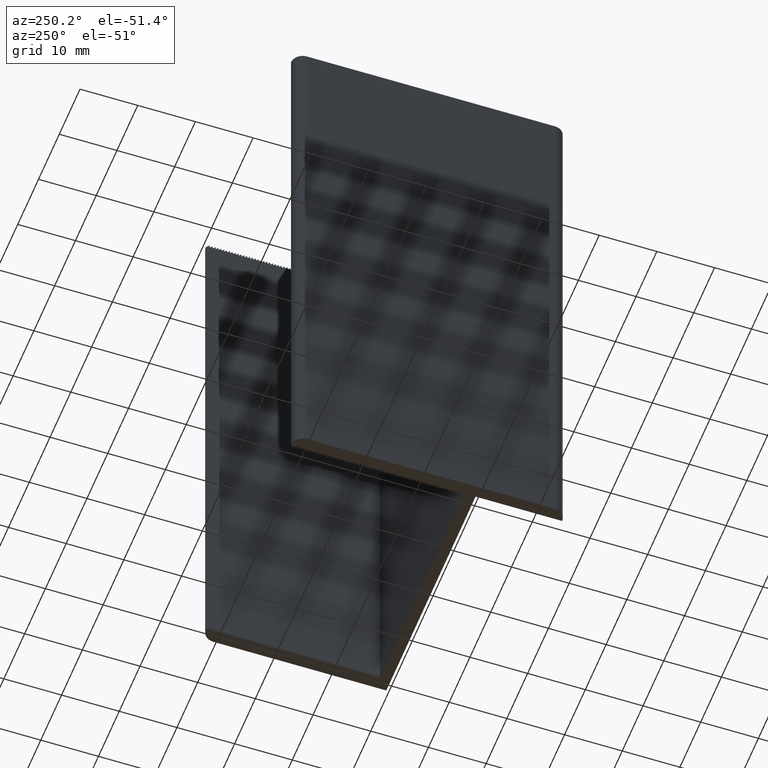
[diagram: clean part render]
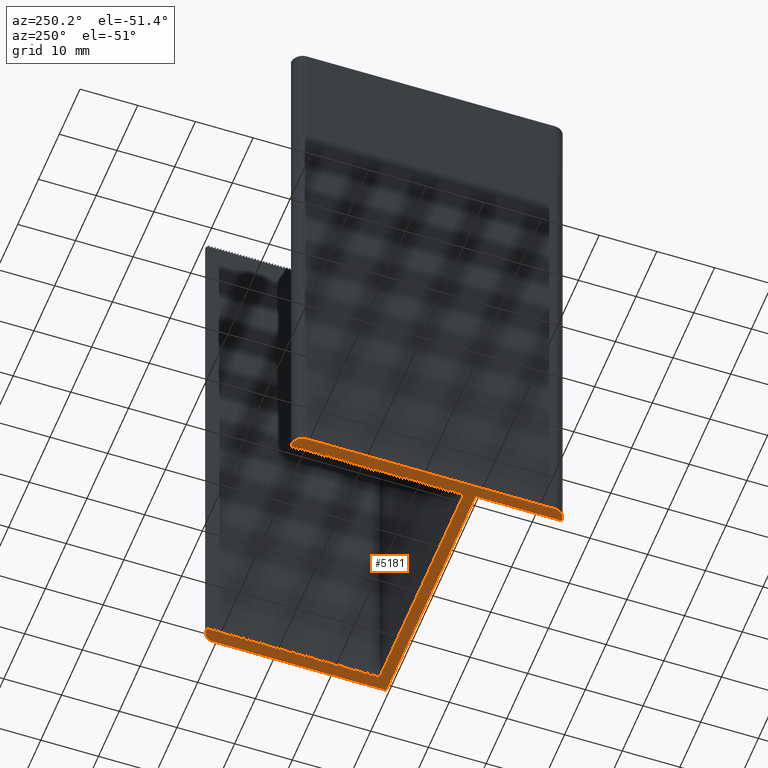
[diagram: same view with one face highlighted and labeled with its STEP entity id]
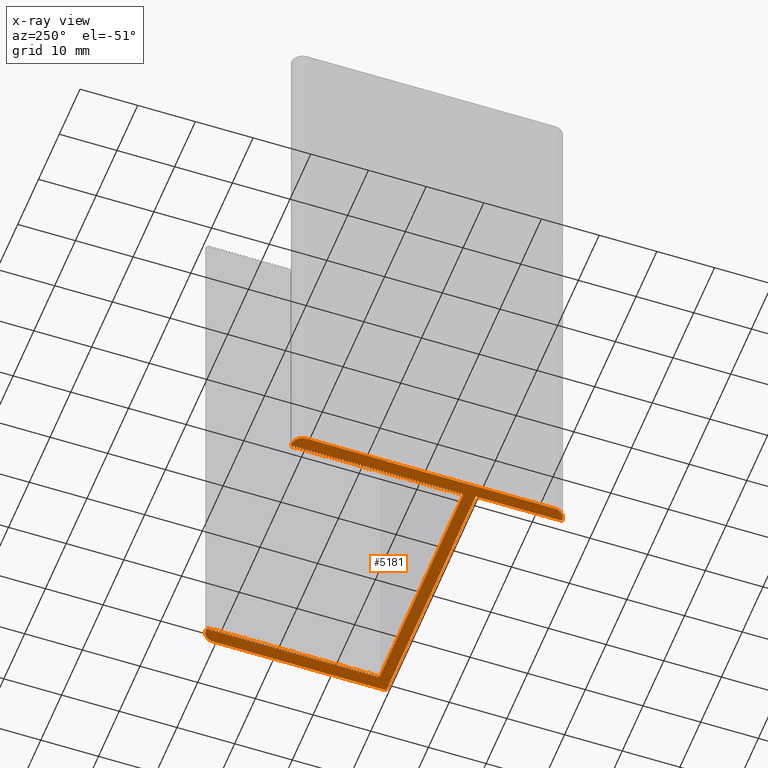
[diagram: x-ray of the same camera — body ghosted, the highlighted face saturated]
A machine part, auxiliary view. The second image highlights one B-rep face of the part: STEP entity #5181.
The next image is the same camera in x-ray: the body ghosted, the highlighted face saturated — about 0% of this face is hidden behind the body in this view.
In plain terms, the highlighted planar face has unit normal (0, 0, 1).
Its self-contained STEP definition (entity closure, byte-faithful):
#15=CIRCLE('',#5304,2.);
#17=CIRCLE('',#5310,2.);
#19=CIRCLE('',#5314,2.);
#270=FACE_OUTER_BOUND('',#518,.T.);
#518=EDGE_LOOP('',(#4198,#4199,#4200,#4201,#4202,#4203,#4204,#4205,#4206,
#4207,#4208,#4209,#4210,#4211,#4212,#4213,#4214,#4215,#4216,#4217,#4218,
#4219,#4220,#4221,#4222,#4223,#4224,#4225,#4226,#4227,#4228,#4229,#4230,
#4231,#4232,#4233,#4234,#4235,#4236,#4237,#4238,#4239,#4240,#4241,#4242,
#4243,#4244,#4245,#4246,#4247,#4248,#4249,#4250,#4251,#4252,#4253,#4254,
#4255,#4256,#4257,#4258,#4259,#4260,#4261,#4262,#4263,#4264,#4265,#4266,
#4267,#4268,#4269,#4270,#4271,#4272,#4273,#4274,#4275,#4276,#4277,#4278,
#4279,#4280,#4281,#4282,#4283,#4284,#4285,#4286,#4287,#4288,#4289,#4290,
#4291,#4292,#4293,#4294,#4295,#4296,#4297,#4298,#4299,#4300,#4301,#4302,
#4303,#4304,#4305,#4306,#4307,#4308,#4309,#4310,#4311,#4312,#4313,#4314,
#4315,#4316,#4317,#4318,#4319,#4320,#4321,#4322,#4323,#4324,#4325,#4326,
#4327,#4328,#4329,#4330,#4331,#4332,#4333,#4334,#4335,#4336,#4337,#4338,
#4339,#4340,#4341,#4342,#4343,#4344,#4345,#4346,#4347,#4348,#4349,#4350,
#4351,#4352,#4353,#4354,#4355,#4356,#4357,#4358,#4359,#4360,#4361,#4362,
#4363,#4364,#4365,#4366,#4367,#4368,#4369,#4370,#4371,#4372,#4373,#4374,
#4375,#4376,#4377,#4378,#4379,#4380,#4381,#4382,#4383,#4384,#4385,#4386,
#4387,#4388,#4389,#4390,#4391,#4392,#4393,#4394,#4395,#4396,#4397,#4398,
#4399,#4400,#4401,#4402,#4403,#4404,#4405,#4406,#4407,#4408,#4409,#4410,
#4411,#4412,#4413,#4414,#4415,#4416,#4417,#4418,#4419,#4420,#4421,#4422,
#4423,#4424,#4425,#4426,#4427,#4428,#4429,#4430,#4431,#4432,#4433,#4434,
#4435,#4436,#4437,#4438,#4439,#4440,#4441,#4442,#4443));
#520=LINE('',#6685,#1252);
#524=LINE('',#6693,#1256);
#527=LINE('',#6699,#1259);
#530=LINE('',#6705,#1262);
#533=LINE('',#6711,#1265);
#536=LINE('',#6717,#1268);
#539=LINE('',#6723,#1271);
#542=LINE('',#6729,#1274);
#545=LINE('',#6735,#1277);
#548=LINE('',#6741,#1280);
#551=LINE('',#6747,#1283);
#554=LINE('',#6753,#1286);
#557=LINE('',#6759,#1289);
#560=LINE('',#6765,#1292);
#563=LINE('',#6771,#1295);
#566=LINE('',#6777,#1298);
#569=LINE('',#6783,#1301);
#572=LINE('',#6789,#1304);
#575=LINE('',#6795,#1307);
#578=LINE('',#6801,#1310);
#581=LINE('',#6807,#1313);
#584=LINE('',#6813,#1316);
#587=LINE('',#6819,#1319);
#590=LINE('',#6825,#1322);
#593=LINE('',#6831,#1325);
#596=LINE('',#6837,#1328);
#599=LINE('',#6843,#1331);
#602=LINE('',#6849,#1334);
#605=LINE('',#6855,#1337);
#608=LINE('',#6861,#1340);
#611=LINE('',#6867,#1343);
#614=LINE('',#6873,#1346);
#617=LINE('',#6879,#1349);
#620=LINE('',#6885,#1352);
#623=LINE('',#6891,#1355);
#626=LINE('',#6897,#1358);
#629=LINE('',#6903,#1361);
#632=LINE('',#6909,#1364);
#635=LINE('',#6915,#1367);
#638=LINE('',#6921,#1370);
#641=LINE('',#6927,#1373);
#644=LINE('',#6933,#1376);
#647=LINE('',#6939,#1379);
#650=LINE('',#6945,#1382);
#653=LINE('',#6951,#1385);
#656=LINE('',#6957,#1388);
#659=LINE('',#6963,#1391);
#662=LINE('',#6969,#1394);
#665=LINE('',#6975,#1397);
#668=LINE('',#6981,#1400);
#671=LINE('',#6987,#1403);
#674=LINE('',#6993,#1406);
#677=LINE('',#6999,#1409);
#680=LINE('',#7005,#1412);
#683=LINE('',#7011,#1415);
#686=LINE('',#7017,#1418);
#689=LINE('',#7023,#1421);
#692=LINE('',#7029,#1424);
#695=LINE('',#7035,#1427);
#698=LINE('',#7041,#1430);
#701=LINE('',#7047,#1433);
#704=LINE('',#7053,#1436);
#707=LINE('',#7059,#1439);
#710=LINE('',#7065,#1442);
#713=LINE('',#7071,#1445);
#716=LINE('',#7077,#1448);
#719=LINE('',#7083,#1451);
#722=LINE('',#7089,#1454);
#725=LINE('',#7095,#1457);
#728=LINE('',#7101,#1460);
#731=LINE('',#7107,#1463);
#734=LINE('',#7113,#1466);
#737=LINE('',#7119,#1469);
#740=LINE('',#7125,#1472);
#743=LINE('',#7131,#1475);
#746=LINE('',#7137,#1478);
#749=LINE('',#7143,#1481);
#752=LINE('',#7149,#1484);
#755=LINE('',#7155,#1487);
#758=LINE('',#7161,#1490);
#761=LINE('',#7167,#1493);
#764=LINE('',#7173,#1496);
#767=LINE('',#7179,#1499);
#770=LINE('',#7185,#1502);
#773=LINE('',#7191,#1505);
#776=LINE('',#7197,#1508);
#779=LINE('',#7203,#1511);
#782=LINE('',#7209,#1514);
#785=LINE('',#7215,#1517);
#788=LINE('',#7221,#1520);
#791=LINE('',#7227,#1523);
#794=LINE('',#7233,#1526);
#797=LINE('',#7239,#1529);
#800=LINE('',#7245,#1532);
#803=LINE('',#7251,#1535);
#806=LINE('',#7257,#1538);
#809=LINE('',#7263,#1541);
#812=LINE('',#7269,#1544);
#815=LINE('',#7275,#1547);
#818=LINE('',#7281,#1550);
#821=LINE('',#7287,#1553);
#824=LINE('',#7293,#1556);
#827=LINE('',#7299,#1559);
#830=LINE('',#7305,#1562);
#833=LINE('',#7311,#1565);
#836=LINE('',#7317,#1568);
#839=LINE('',#7323,#1571);
#842=LINE('',#7329,#1574);
#845=LINE('',#7335,#1577);
#848=LINE('',#7341,#1580);
#851=LINE('',#7347,#1583);
#854=LINE('',#7353,#1586);
#857=LINE('',#7359,#1589);
#860=LINE('',#7365,#1592);
#863=LINE('',#7371,#1595);
#866=LINE('',#7377,#1598);
#869=LINE('',#7383,#1601);
#872=LINE('',#7389,#1604);
#876=LINE('',#7401,#1608);
#879=LINE('',#7407,#1611);
#882=LINE('',#7413,#1614);
#886=LINE('',#7425,#1618);
#890=LINE('',#7437,#1622);
#893=LINE('',#7443,#1625);
#896=LINE('',#7449,#1628);
#899=LINE('',#7455,#1631);
#902=LINE('',#7461,#1634);
#905=LINE('',#7467,#1637);
#908=LINE('',#7473,#1640);
#911=LINE('',#7479,#1643);
#914=LINE('',#7485,#1646);
#917=LINE('',#7491,#1649);
#920=LINE('',#7497,#1652);
#923=LINE('',#7503,#1655);
#926=LINE('',#7509,#1658);
#929=LINE('',#7515,#1661);
#932=LINE('',#7521,#1664);
#935=LINE('',#7527,#1667);
#938=LINE('',#7533,#1670);
#941=LINE('',#7539,#1673);
#944=LINE('',#7545,#1676);
#947=LINE('',#7551,#1679);
#950=LINE('',#7557,#1682);
#953=LINE('',#7563,#1685);
#956=LINE('',#7569,#1688);
#959=LINE('',#7575,#1691);
#962=LINE('',#7581,#1694);
#965=LINE('',#7587,#1697);
#968=LINE('',#7593,#1700);
#971=LINE('',#7599,#1703);
#974=LINE('',#7605,#1706);
#977=LINE('',#7611,#1709);
#980=LINE('',#7617,#1712);
#983=LINE('',#7623,#1715);
#986=LINE('',#7629,#1718);
#989=LINE('',#7635,#1721);
#992=LINE('',#7641,#1724);
#995=LINE('',#7647,#1727);
#998=LINE('',#7653,#1730);
#1001=LINE('',#7659,#1733);
#1004=LINE('',#7665,#1736);
#1007=LINE('',#7671,#1739);
#1010=LINE('',#7677,#1742);
#1013=LINE('',#7683,#1745);
#1016=LINE('',#7689,#1748);
#1019=LINE('',#7695,#1751);
#1022=LINE('',#7701,#1754);
#1025=LINE('',#7707,#1757);
#1028=LINE('',#7713,#1760);
#1031=LINE('',#7719,#1763);
#1034=LINE('',#7725,#1766);
#1037=LINE('',#7731,#1769);
#1040=LINE('',#7737,#1772);
#1043=LINE('',#7743,#1775);
#1046=LINE('',#7749,#1778);
#1049=LINE('',#7755,#1781);
#1052=LINE('',#7761,#1784);
#1055=LINE('',#7767,#1787);
#1058=LINE('',#7773,#1790);
#1061=LINE('',#7779,#1793);
#1064=LINE('',#7785,#1796);
#1067=LINE('',#7791,#1799);
#1070=LINE('',#7797,#1802);
#1073=LINE('',#7803,#1805);
#1076=LINE('',#7809,#1808);
#1079=LINE('',#7815,#1811);
#1082=LINE('',#7821,#1814);
#1085=LINE('',#7827,#1817);
#1088=LINE('',#7833,#1820);
#1091=LINE('',#7839,#1823);
#1094=LINE('',#7845,#1826);
#1097=LINE('',#7851,#1829);
#1100=LINE('',#7857,#1832);
#1103=LINE('',#7863,#1835);
#1106=LINE('',#7869,#1838);
#1109=LINE('',#7875,#1841);
#1112=LINE('',#7881,#1844);
#1115=LINE('',#7887,#1847);
#1118=LINE('',#7893,#1850);
#1121=LINE('',#7899,#1853);
#1124=LINE('',#7905,#1856);
#1127=LINE('',#7911,#1859);
#1130=LINE('',#7917,#1862);
#1133=LINE('',#7923,#1865);
#1136=LINE('',#7929,#1868);
#1139=LINE('',#7935,#1871);
#1142=LINE('',#7941,#1874);
#1145=LINE('',#7947,#1877);
#1148=LINE('',#7953,#1880);
#1151=LINE('',#7959,#1883);
#1154=LINE('',#7965,#1886);
#1157=LINE('',#7971,#1889);
#1160=LINE('',#7977,#1892);
#1163=LINE('',#7983,#1895);
#1166=LINE('',#7989,#1898);
#1169=LINE('',#7995,#1901);
#1172=LINE('',#8001,#1904);
#1175=LINE('',#8007,#1907);
#1178=LINE('',#8013,#1910);
#1181=LINE('',#8019,#1913);
#1184=LINE('',#8025,#1916);
#1187=LINE('',#8031,#1919);
#1190=LINE('',#8037,#1922);
#1193=LINE('',#8043,#1925);
#1196=LINE('',#8049,#1928);
#1199=LINE('',#8055,#1931);
#1202=LINE('',#8061,#1934);
#1205=LINE('',#8067,#1937);
#1208=LINE('',#8073,#1940);
#1211=LINE('',#8079,#1943);
#1214=LINE('',#8085,#1946);
#1217=LINE('',#8091,#1949);
#1220=LINE('',#8097,#1952);
#1223=LINE('',#8103,#1955);
#1226=LINE('',#8109,#1958);
#1229=LINE('',#8115,#1961);
#1232=LINE('',#8121,#1964);
#1235=LINE('',#8127,#1967);
#1238=LINE('',#8133,#1970);
#1241=LINE('',#8139,#1973);
#1244=LINE('',#8145,#1976);
#1247=LINE('',#8151,#1979);
#1250=LINE('',#8156,#1982);
#1252=VECTOR('',#5443,0.499999999999998);
#1256=VECTOR('',#5449,0.707106781186548);
#1259=VECTOR('',#5454,0.499999999999998);
#1262=VECTOR('',#5459,0.707106781186545);
#1265=VECTOR('',#5464,0.499999999999998);
#1268=VECTOR('',#5469,0.707106781186548);
#1271=VECTOR('',#5474,0.499999999999998);
#1274=VECTOR('',#5479,0.707106781186545);
#1277=VECTOR('',#5484,0.499999999999998);
#1280=VECTOR('',#5489,0.707106781186545);
#1283=VECTOR('',#5494,0.499999999999998);
#1286=VECTOR('',#5499,0.707106781186548);
#1289=VECTOR('',#5504,0.499999999999998);
#1292=VECTOR('',#5509,0.707106781186545);
#1295=VECTOR('',#5514,0.499999999999998);
#1298=VECTOR('',#5519,0.707106781186548);
#1301=VECTOR('',#5524,0.499999999999998);
#1304=VECTOR('',#5529,0.707106781186542);
#1307=VECTOR('',#5534,0.499999999999998);
#1310=VECTOR('',#5539,0.707106781186545);
#1313=VECTOR('',#5544,0.499999999999998);
#1316=VECTOR('',#5549,0.707106781186547);
#1319=VECTOR('',#5554,0.499999999999998);
#1322=VECTOR('',#5559,0.707106781186543);
#1325=VECTOR('',#5564,0.499999999999998);
#1328=VECTOR('',#5569,0.707106781186547);
#1331=VECTOR('',#5574,0.499999999999998);
#1334=VECTOR('',#5579,0.707106781186543);
#1337=VECTOR('',#5584,0.499999999999998);
#1340=VECTOR('',#5589,0.70710678118655);
#1343=VECTOR('',#5594,0.499999999999998);
#1346=VECTOR('',#5599,0.707106781186543);
#1349=VECTOR('',#5604,0.499999999999998);
#1352=VECTOR('',#5609,0.707106781186543);
#1355=VECTOR('',#5614,0.499999999999998);
#1358=VECTOR('',#5619,0.70710678118655);
#1361=VECTOR('',#5624,0.499999999999998);
#1364=VECTOR('',#5629,0.707106781186545);
#1367=VECTOR('',#5634,0.499999999999998);
#1370=VECTOR('',#5639,0.707106781186545);
#1373=VECTOR('',#5644,0.499999999999998);
#1376=VECTOR('',#5649,0.707106781186547);
#1379=VECTOR('',#5654,0.499999999999998);
#1382=VECTOR('',#5659,0.707106781186545);
#1385=VECTOR('',#5664,0.499999999999998);
#1388=VECTOR('',#5669,0.707106781186547);
#1391=VECTOR('',#5674,0.499999999999998);
#1394=VECTOR('',#5679,0.707106781186545);
#1397=VECTOR('',#5684,0.499999999999998);
#1400=VECTOR('',#5689,0.707106781186545);
#1403=VECTOR('',#5694,0.499999999999998);
#1406=VECTOR('',#5699,0.707106781186547);
#1409=VECTOR('',#5704,0.499999999999998);
#1412=VECTOR('',#5709,0.707106781186545);
#1415=VECTOR('',#5714,0.499999999999998);
#1418=VECTOR('',#5719,0.707106781186547);
#1421=VECTOR('',#5724,0.499999999999998);
#1424=VECTOR('',#5729,0.707106781186545);
#1427=VECTOR('',#5734,0.499999999999998);
#1430=VECTOR('',#5739,0.707106781186547);
#1433=VECTOR('',#5744,0.499999999999998);
#1436=VECTOR('',#5749,0.707106781186545);
#1439=VECTOR('',#5754,0.499999999999998);
#1442=VECTOR('',#5759,0.707106781186547);
#1445=VECTOR('',#5764,0.499999999999998);
#1448=VECTOR('',#5769,0.707106781186545);
#1451=VECTOR('',#5774,0.499999999999998);
#1454=VECTOR('',#5779,0.707106781186545);
#1457=VECTOR('',#5784,0.499999999999998);
#1460=VECTOR('',#5789,0.707106781186545);
#1463=VECTOR('',#5794,0.499999999999998);
#1466=VECTOR('',#5799,0.707106781186545);
#1469=VECTOR('',#5804,0.499999999999998);
#1472=VECTOR('',#5809,0.707106781186548);
#1475=VECTOR('',#5814,0.499999999999998);
#1478=VECTOR('',#5819,0.707106781186545);
#1481=VECTOR('',#5824,0.499999999999998);
#1484=VECTOR('',#5829,0.707106781186545);
#1487=VECTOR('',#5834,0.499999999999998);
#1490=VECTOR('',#5839,0.707106781186548);
#1493=VECTOR('',#5844,0.499999999999998);
#1496=VECTOR('',#5849,0.707106781186542);
#1499=VECTOR('',#5854,0.499999999999998);
#1502=VECTOR('',#5859,0.707106781186545);
#1505=VECTOR('',#5864,0.499999999999998);
#1508=VECTOR('',#5869,0.707106781186545);
#1511=VECTOR('',#5874,0.499999999999998);
#1514=VECTOR('',#5879,0.707106781186545);
#1517=VECTOR('',#5884,0.499999999999998);
#1520=VECTOR('',#5889,0.707106781186548);
#1523=VECTOR('',#5894,0.499999999999998);
#1526=VECTOR('',#5899,0.707106781186545);
#1529=VECTOR('',#5904,0.499999999999998);
#1532=VECTOR('',#5909,0.707106781186545);
#1535=VECTOR('',#5914,0.499999999999998);
#1538=VECTOR('',#5919,0.707106781186545);
#1541=VECTOR('',#5924,0.499999999999998);
#1544=VECTOR('',#5929,0.707106781186545);
#1547=VECTOR('',#5934,0.499999999999998);
#1550=VECTOR('',#5939,0.707106781186548);
#1553=VECTOR('',#5944,0.499999999999998);
#1556=VECTOR('',#5949,0.707106781186545);
#1559=VECTOR('',#5954,0.499999999999998);
#1562=VECTOR('',#5959,0.707106781186545);
#1565=VECTOR('',#5964,0.499999999999998);
#1568=VECTOR('',#5969,0.707106781186545);
#1571=VECTOR('',#5974,0.499999999999998);
#1574=VECTOR('',#5979,0.707106781186545);
#1577=VECTOR('',#5984,0.499999999999998);
#1580=VECTOR('',#5989,0.707106781186548);
#1583=VECTOR('',#5994,0.499999999999998);
#1586=VECTOR('',#5999,0.707106781186548);
#1589=VECTOR('',#6004,0.499999999999998);
#1592=VECTOR('',#6009,0.707106781186545);
#1595=VECTOR('',#6014,0.499999999999998);
#1598=VECTOR('',#6019,0.707106781186545);
#1601=VECTOR('',#6024,0.499999999999998);
#1604=VECTOR('',#6029,0.707106781186548);
#1608=VECTOR('',#6041,30.);
#1611=VECTOR('',#6046,43.);
#1614=VECTOR('',#6051,15.);
#1618=VECTOR('',#6063,43.);
#1622=VECTOR('',#6075,0.707106781186545);
#1625=VECTOR('',#6080,0.499999999999998);
#1628=VECTOR('',#6085,0.707106781186545);
#1631=VECTOR('',#6090,0.499999999999998);
#1634=VECTOR('',#6095,0.707106781186545);
#1637=VECTOR('',#6100,0.499999999999998);
#1640=VECTOR('',#6105,0.707106781186548);
#1643=VECTOR('',#6110,0.499999999999998);
#1646=VECTOR('',#6115,0.707106781186548);
#1649=VECTOR('',#6120,0.499999999999998);
#1652=VECTOR('',#6125,0.707106781186545);
#1655=VECTOR('',#6130,0.499999999999998);
#1658=VECTOR('',#6135,0.707106781186545);
#1661=VECTOR('',#6140,0.499999999999998);
#1664=VECTOR('',#6145,0.707106781186548);
#1667=VECTOR('',#6150,0.499999999999998);
#1670=VECTOR('',#6155,0.707106781186545);
#1673=VECTOR('',#6160,0.499999999999998);
#1676=VECTOR('',#6165,0.707106781186548);
#1679=VECTOR('',#6170,0.499999999999998);
#1682=VECTOR('',#6175,0.707106781186545);
#1685=VECTOR('',#6180,0.499999999999998);
#1688=VECTOR('',#6185,0.707106781186545);
#1691=VECTOR('',#6190,0.499999999999998);
#1694=VECTOR('',#6195,0.707106781186548);
#1697=VECTOR('',#6200,0.499999999999998);
#1700=VECTOR('',#6205,0.707106781186545);
#1703=VECTOR('',#6210,0.499999999999998);
#1706=VECTOR('',#6215,0.707106781186548);
#1709=VECTOR('',#6220,0.499999999999998);
#1712=VECTOR('',#6225,0.707106781186545);
#1715=VECTOR('',#6230,0.499999999999998);
#1718=VECTOR('',#6235,0.707106781186545);
#1721=VECTOR('',#6240,0.499999999999998);
#1724=VECTOR('',#6245,0.707106781186548);
#1727=VECTOR('',#6250,0.499999999999998);
#1730=VECTOR('',#6255,0.707106781186545);
#1733=VECTOR('',#6260,0.499999999999998);
#1736=VECTOR('',#6265,0.707106781186548);
#1739=VECTOR('',#6270,0.499999999999998);
#1742=VECTOR('',#6275,0.707106781186545);
#1745=VECTOR('',#6280,0.499999999999998);
#1748=VECTOR('',#6285,0.707106781186545);
#1751=VECTOR('',#6290,0.499999999999998);
#1754=VECTOR('',#6295,0.707106781186548);
#1757=VECTOR('',#6300,0.499999999999998);
#1760=VECTOR('',#6305,0.707106781186545);
#1763=VECTOR('',#6310,0.499999999999998);
#1766=VECTOR('',#6315,0.707106781186548);
#1769=VECTOR('',#6320,0.499999999999998);
#1772=VECTOR('',#6325,0.707106781186545);
#1775=VECTOR('',#6330,0.499999999999998);
#1778=VECTOR('',#6335,0.707106781186545);
#1781=VECTOR('',#6340,0.499999999999998);
#1784=VECTOR('',#6345,0.707106781186548);
#1787=VECTOR('',#6350,0.499999999999998);
#1790=VECTOR('',#6355,0.707106781186545);
#1793=VECTOR('',#6360,0.499999999999998);
#1796=VECTOR('',#6365,0.707106781186548);
#1799=VECTOR('',#6370,0.499999999999998);
#1802=VECTOR('',#6375,0.707106781186545);
#1805=VECTOR('',#6380,0.499999999999998);
#1808=VECTOR('',#6385,0.707106781186545);
#1811=VECTOR('',#6390,0.499999999999998);
#1814=VECTOR('',#6395,0.707106781186548);
#1817=VECTOR('',#6400,0.499999999999998);
#1820=VECTOR('',#6405,0.707106781186545);
#1823=VECTOR('',#6410,0.499999999999998);
#1826=VECTOR('',#6415,0.707106781186548);
#1829=VECTOR('',#6420,0.499999999999989);
#1832=VECTOR('',#6425,0.707106781186539);
#1835=VECTOR('',#6430,0.499999999999989);
#1838=VECTOR('',#6435,0.707106781186539);
#1841=VECTOR('',#6440,0.499999999999989);
#1844=VECTOR('',#6445,0.707106781186542);
#1847=VECTOR('',#6450,0.499999999999989);
#1850=VECTOR('',#6455,0.707106781186539);
#1853=VECTOR('',#6460,0.499999999999989);
#1856=VECTOR('',#6465,0.707106781186542);
#1859=VECTOR('',#6470,0.499999999999989);
#1862=VECTOR('',#6475,0.707106781186539);
#1865=VECTOR('',#6480,0.499999999999989);
#1868=VECTOR('',#6485,0.707106781186542);
#1871=VECTOR('',#6490,0.499999999999989);
#1874=VECTOR('',#6495,0.707106781186539);
#1877=VECTOR('',#6500,0.499999999999989);
#1880=VECTOR('',#6505,0.707106781186539);
#1883=VECTOR('',#6510,0.499999999999989);
#1886=VECTOR('',#6515,0.707106781186542);
#1889=VECTOR('',#6520,0.499999999999989);
#1892=VECTOR('',#6525,0.707106781186539);
#1895=VECTOR('',#6530,0.499999999999989);
#1898=VECTOR('',#6535,0.707106781186542);
#1901=VECTOR('',#6540,0.499999999999989);
#1904=VECTOR('',#6545,0.707106781186539);
#1907=VECTOR('',#6550,0.499999999999989);
#1910=VECTOR('',#6555,0.707106781186542);
#1913=VECTOR('',#6560,0.499999999999989);
#1916=VECTOR('',#6565,0.707106781186539);
#1919=VECTOR('',#6570,0.499999999999989);
#1922=VECTOR('',#6575,0.707106781186539);
#1925=VECTOR('',#6580,0.499999999999989);
#1928=VECTOR('',#6585,0.707106781186542);
#1931=VECTOR('',#6590,0.499999999999989);
#1934=VECTOR('',#6595,0.707106781186539);
#1937=VECTOR('',#6600,0.499999999999989);
#1940=VECTOR('',#6605,0.707106781186542);
#1943=VECTOR('',#6610,0.499999999999989);
#1946=VECTOR('',#6615,0.707106781186539);
#1949=VECTOR('',#6620,0.499999999999989);
#1952=VECTOR('',#6625,0.707106781186539);
#1955=VECTOR('',#6630,0.499999999999989);
#1958=VECTOR('',#6635,0.707106781186542);
#1961=VECTOR('',#6640,0.499999999999989);
#1964=VECTOR('',#6645,0.707106781186539);
#1967=VECTOR('',#6650,0.499999999999989);
#1970=VECTOR('',#6655,0.707106781186542);
#1973=VECTOR('',#6660,0.499999999999989);
#1976=VECTOR('',#6665,0.707106781186539);
#1979=VECTOR('',#6670,40.);
#1982=VECTOR('',#6675,0.707106781186545);
#1984=VERTEX_POINT('',#6683);
#1985=VERTEX_POINT('',#6684);
#1988=VERTEX_POINT('',#6692);
#1990=VERTEX_POINT('',#6698);
#1992=VERTEX_POINT('',#6704);
#1994=VERTEX_POINT('',#6710);
#1996=VERTEX_POINT('',#6716);
#1998=VERTEX_POINT('',#6722);
#2000=VERTEX_POINT('',#6728);
#2002=VERTEX_POINT('',#6734);
#2004=VERTEX_POINT('',#6740);
#2006=VERTEX_POINT('',#6746);
#2008=VERTEX_POINT('',#6752);
#2010=VERTEX_POINT('',#6758);
#2012=VERTEX_POINT('',#6764);
#2014=VERTEX_POINT('',#6770);
#2016=VERTEX_POINT('',#6776);
#2018=VERTEX_POINT('',#6782);
#2020=VERTEX_POINT('',#6788);
#2022=VERTEX_POINT('',#6794);
#2024=VERTEX_POINT('',#6800);
#2026=VERTEX_POINT('',#6806);
#2028=VERTEX_POINT('',#6812);
#2030=VERTEX_POINT('',#6818);
#2032=VERTEX_POINT('',#6824);
#2034=VERTEX_POINT('',#6830);
#2036=VERTEX_POINT('',#6836);
#2038=VERTEX_POINT('',#6842);
#2040=VERTEX_POINT('',#6848);
#2042=VERTEX_POINT('',#6854);
#2044=VERTEX_POINT('',#6860);
#2046=VERTEX_POINT('',#6866);
#2048=VERTEX_POINT('',#6872);
#2050=VERTEX_POINT('',#6878);
#2052=VERTEX_POINT('',#6884);
#2054=VERTEX_POINT('',#6890);
#2056=VERTEX_POINT('',#6896);
#2058=VERTEX_POINT('',#6902);
#2060=VERTEX_POINT('',#6908);
#2062=VERTEX_POINT('',#6914);
#2064=VERTEX_POINT('',#6920);
#2066=VERTEX_POINT('',#6926);
#2068=VERTEX_POINT('',#6932);
#2070=VERTEX_POINT('',#6938);
#2072=VERTEX_POINT('',#6944);
#2074=VERTEX_POINT('',#6950);
#2076=VERTEX_POINT('',#6956);
#2078=VERTEX_POINT('',#6962);
#2080=VERTEX_POINT('',#6968);
#2082=VERTEX_POINT('',#6974);
#2084=VERTEX_POINT('',#6980);
#2086=VERTEX_POINT('',#6986);
#2088=VERTEX_POINT('',#6992);
#2090=VERTEX_POINT('',#6998);
#2092=VERTEX_POINT('',#7004);
#2094=VERTEX_POINT('',#7010);
#2096=VERTEX_POINT('',#7016);
#2098=VERTEX_POINT('',#7022);
#2100=VERTEX_POINT('',#7028);
#2102=VERTEX_POINT('',#7034);
#2104=VERTEX_POINT('',#7040);
#2106=VERTEX_POINT('',#7046);
#2108=VERTEX_POINT('',#7052);
#2110=VERTEX_POINT('',#7058);
#2112=VERTEX_POINT('',#7064);
#2114=VERTEX_POINT('',#7070);
#2116=VERTEX_POINT('',#7076);
#2118=VERTEX_POINT('',#7082);
#2120=VERTEX_POINT('',#7088);
#2122=VERTEX_POINT('',#7094);
#2124=VERTEX_POINT('',#7100);
#2126=VERTEX_POINT('',#7106);
#2128=VERTEX_POINT('',#7112);
#2130=VERTEX_POINT('',#7118);
#2132=VERTEX_POINT('',#7124);
#2134=VERTEX_POINT('',#7130);
#2136=VERTEX_POINT('',#7136);
#2138=VERTEX_POINT('',#7142);
#2140=VERTEX_POINT('',#7148);
#2142=VERTEX_POINT('',#7154);
#2144=VERTEX_POINT('',#7160);
#2146=VERTEX_POINT('',#7166);
#2148=VERTEX_POINT('',#7172);
#2150=VERTEX_POINT('',#7178);
#2152=VERTEX_POINT('',#7184);
#2154=VERTEX_POINT('',#7190);
#2156=VERTEX_POINT('',#7196);
#2158=VERTEX_POINT('',#7202);
#2160=VERTEX_POINT('',#7208);
#2162=VERTEX_POINT('',#7214);
#2164=VERTEX_POINT('',#7220);
#2166=VERTEX_POINT('',#7226);
#2168=VERTEX_POINT('',#7232);
#2170=VERTEX_POINT('',#7238);
#2172=VERTEX_POINT('',#7244);
#2174=VERTEX_POINT('',#7250);
#2176=VERTEX_POINT('',#7256);
#2178=VERTEX_POINT('',#7262);
#2180=VERTEX_POINT('',#7268);
#2182=VERTEX_POINT('',#7274);
#2184=VERTEX_POINT('',#7280);
#2186=VERTEX_POINT('',#7286);
#2188=VERTEX_POINT('',#7292);
#2190=VERTEX_POINT('',#7298);
#2192=VERTEX_POINT('',#7304);
#2194=VERTEX_POINT('',#7310);
#2196=VERTEX_POINT('',#7316);
#2198=VERTEX_POINT('',#7322);
#2200=VERTEX_POINT('',#7328);
#2202=VERTEX_POINT('',#7334);
#2204=VERTEX_POINT('',#7340);
#2206=VERTEX_POINT('',#7346);
#2208=VERTEX_POINT('',#7352);
#2210=VERTEX_POINT('',#7358);
#2212=VERTEX_POINT('',#7364);
#2214=VERTEX_POINT('',#7370);
#2216=VERTEX_POINT('',#7376);
#2218=VERTEX_POINT('',#7382);
#2220=VERTEX_POINT('',#7388);
#2222=VERTEX_POINT('',#7394);
#2224=VERTEX_POINT('',#7400);
#2226=VERTEX_POINT('',#7406);
#2228=VERTEX_POINT('',#7412);
#2230=VERTEX_POINT('',#7418);
#2232=VERTEX_POINT('',#7424);
#2234=VERTEX_POINT('',#7430);
#2236=VERTEX_POINT('',#7436);
#2238=VERTEX_POINT('',#7442);
#2240=VERTEX_POINT('',#7448);
#2242=VERTEX_POINT('',#7454);
#2244=VERTEX_POINT('',#7460);
#2246=VERTEX_POINT('',#7466);
#2248=VERTEX_POINT('',#7472);
#2250=VERTEX_POINT('',#7478);
#2252=VERTEX_POINT('',#7484);
#2254=VERTEX_POINT('',#7490);
#2256=VERTEX_POINT('',#7496);
#2258=VERTEX_POINT('',#7502);
#2260=VERTEX_POINT('',#7508);
#2262=VERTEX_POINT('',#7514);
#2264=VERTEX_POINT('',#7520);
#2266=VERTEX_POINT('',#7526);
#2268=VERTEX_POINT('',#7532);
#2270=VERTEX_POINT('',#7538);
#2272=VERTEX_POINT('',#7544);
#2274=VERTEX_POINT('',#7550);
#2276=VERTEX_POINT('',#7556);
#2278=VERTEX_POINT('',#7562);
#2280=VERTEX_POINT('',#7568);
#2282=VERTEX_POINT('',#7574);
#2284=VERTEX_POINT('',#7580);
#2286=VERTEX_POINT('',#7586);
#2288=VERTEX_POINT('',#7592);
#2290=VERTEX_POINT('',#7598);
#2292=VERTEX_POINT('',#7604);
#2294=VERTEX_POINT('',#7610);
#2296=VERTEX_POINT('',#7616);
#2298=VERTEX_POINT('',#7622);
#2300=VERTEX_POINT('',#7628);
#2302=VERTEX_POINT('',#7634);
#2304=VERTEX_POINT('',#7640);
#2306=VERTEX_POINT('',#7646);
#2308=VERTEX_POINT('',#7652);
#2310=VERTEX_POINT('',#7658);
#2312=VERTEX_POINT('',#7664);
#2314=VERTEX_POINT('',#7670);
#2316=VERTEX_POINT('',#7676);
#2318=VERTEX_POINT('',#7682);
#2320=VERTEX_POINT('',#7688);
#2322=VERTEX_POINT('',#7694);
#2324=VERTEX_POINT('',#7700);
#2326=VERTEX_POINT('',#7706);
#2328=VERTEX_POINT('',#7712);
#2330=VERTEX_POINT('',#7718);
#2332=VERTEX_POINT('',#7724);
#2334=VERTEX_POINT('',#7730);
#2336=VERTEX_POINT('',#7736);
#2338=VERTEX_POINT('',#7742);
#2340=VERTEX_POINT('',#7748);
#2342=VERTEX_POINT('',#7754);
#2344=VERTEX_POINT('',#7760);
#2346=VERTEX_POINT('',#7766);
#2348=VERTEX_POINT('',#7772);
#2350=VERTEX_POINT('',#7778);
#2352=VERTEX_POINT('',#7784);
#2354=VERTEX_POINT('',#7790);
#2356=VERTEX_POINT('',#7796);
#2358=VERTEX_POINT('',#7802);
#2360=VERTEX_POINT('',#7808);
#2362=VERTEX_POINT('',#7814);
#2364=VERTEX_POINT('',#7820);
#2366=VERTEX_POINT('',#7826);
#2368=VERTEX_POINT('',#7832);
#2370=VERTEX_POINT('',#7838);
#2372=VERTEX_POINT('',#7844);
#2374=VERTEX_POINT('',#7850);
#2376=VERTEX_POINT('',#7856);
#2378=VERTEX_POINT('',#7862);
#2380=VERTEX_POINT('',#7868);
#2382=VERTEX_POINT('',#7874);
#2384=VERTEX_POINT('',#7880);
#2386=VERTEX_POINT('',#7886);
#2388=VERTEX_POINT('',#7892);
#2390=VERTEX_POINT('',#7898);
#2392=VERTEX_POINT('',#7904);
#2394=VERTEX_POINT('',#7910);
#2396=VERTEX_POINT('',#7916);
#2398=VERTEX_POINT('',#7922);
#2400=VERTEX_POINT('',#7928);
#2402=VERTEX_POINT('',#7934);
#2404=VERTEX_POINT('',#7940);
#2406=VERTEX_POINT('',#7946);
#2408=VERTEX_POINT('',#7952);
#2410=VERTEX_POINT('',#7958);
#2412=VERTEX_POINT('',#7964);
#2414=VERTEX_POINT('',#7970);
#2416=VERTEX_POINT('',#7976);
#2418=VERTEX_POINT('',#7982);
#2420=VERTEX_POINT('',#7988);
#2422=VERTEX_POINT('',#7994);
#2424=VERTEX_POINT('',#8000);
#2426=VERTEX_POINT('',#8006);
#2428=VERTEX_POINT('',#8012);
#2430=VERTEX_POINT('',#8018);
#2432=VERTEX_POINT('',#8024);
#2434=VERTEX_POINT('',#8030);
#2436=VERTEX_POINT('',#8036);
#2438=VERTEX_POINT('',#8042);
#2440=VERTEX_POINT('',#8048);
#2442=VERTEX_POINT('',#8054);
#2444=VERTEX_POINT('',#8060);
#2446=VERTEX_POINT('',#8066);
#2448=VERTEX_POINT('',#8072);
#2450=VERTEX_POINT('',#8078);
#2452=VERTEX_POINT('',#8084);
#2454=VERTEX_POINT('',#8090);
#2456=VERTEX_POINT('',#8096);
#2458=VERTEX_POINT('',#8102);
#2460=VERTEX_POINT('',#8108);
#2462=VERTEX_POINT('',#8114);
#2464=VERTEX_POINT('',#8120);
#2466=VERTEX_POINT('',#8126);
#2468=VERTEX_POINT('',#8132);
#2470=VERTEX_POINT('',#8138);
#2472=VERTEX_POINT('',#8144);
#2474=VERTEX_POINT('',#8150);
#2476=EDGE_CURVE('',#1984,#1985,#520,.T.);
#2480=EDGE_CURVE('',#1985,#1988,#524,.T.);
#2483=EDGE_CURVE('',#1988,#1990,#527,.T.);
#2486=EDGE_CURVE('',#1990,#1992,#530,.T.);
#2489=EDGE_CURVE('',#1992,#1994,#533,.T.);
#2492=EDGE_CURVE('',#1994,#1996,#536,.T.);
#2495=EDGE_CURVE('',#1996,#1998,#539,.T.);
#2498=EDGE_CURVE('',#1998,#2000,#542,.T.);
#2501=EDGE_CURVE('',#2000,#2002,#545,.T.);
#2504=EDGE_CURVE('',#2002,#2004,#548,.T.);
#2507=EDGE_CURVE('',#2004,#2006,#551,.T.);
#2510=EDGE_CURVE('',#2006,#2008,#554,.T.);
#2513=EDGE_CURVE('',#2008,#2010,#557,.T.);
#2516=EDGE_CURVE('',#2010,#2012,#560,.T.);
#2519=EDGE_CURVE('',#2012,#2014,#563,.T.);
#2522=EDGE_CURVE('',#2014,#2016,#566,.T.);
#2525=EDGE_CURVE('',#2016,#2018,#569,.T.);
#2528=EDGE_CURVE('',#2018,#2020,#572,.T.);
#2531=EDGE_CURVE('',#2020,#2022,#575,.T.);
#2534=EDGE_CURVE('',#2022,#2024,#578,.T.);
#2537=EDGE_CURVE('',#2024,#2026,#581,.T.);
#2540=EDGE_CURVE('',#2026,#2028,#584,.T.);
#2543=EDGE_CURVE('',#2028,#2030,#587,.T.);
#2546=EDGE_CURVE('',#2030,#2032,#590,.T.);
#2549=EDGE_CURVE('',#2032,#2034,#593,.T.);
#2552=EDGE_CURVE('',#2034,#2036,#596,.T.);
#2555=EDGE_CURVE('',#2036,#2038,#599,.T.);
#2558=EDGE_CURVE('',#2038,#2040,#602,.T.);
#2561=EDGE_CURVE('',#2040,#2042,#605,.T.);
#2564=EDGE_CURVE('',#2042,#2044,#608,.T.);
#2567=EDGE_CURVE('',#2044,#2046,#611,.T.);
#2570=EDGE_CURVE('',#2046,#2048,#614,.T.);
#2573=EDGE_CURVE('',#2048,#2050,#617,.T.);
#2576=EDGE_CURVE('',#2050,#2052,#620,.T.);
#2579=EDGE_CURVE('',#2052,#2054,#623,.T.);
#2582=EDGE_CURVE('',#2054,#2056,#626,.T.);
#2585=EDGE_CURVE('',#2056,#2058,#629,.T.);
#2588=EDGE_CURVE('',#2058,#2060,#632,.T.);
#2591=EDGE_CURVE('',#2060,#2062,#635,.T.);
#2594=EDGE_CURVE('',#2062,#2064,#638,.T.);
#2597=EDGE_CURVE('',#2064,#2066,#641,.T.);
#2600=EDGE_CURVE('',#2066,#2068,#644,.T.);
#2603=EDGE_CURVE('',#2068,#2070,#647,.T.);
#2606=EDGE_CURVE('',#2070,#2072,#650,.T.);
#2609=EDGE_CURVE('',#2072,#2074,#653,.T.);
#2612=EDGE_CURVE('',#2074,#2076,#656,.T.);
#2615=EDGE_CURVE('',#2076,#2078,#659,.T.);
#2618=EDGE_CURVE('',#2078,#2080,#662,.T.);
#2621=EDGE_CURVE('',#2080,#2082,#665,.T.);
#2624=EDGE_CURVE('',#2082,#2084,#668,.T.);
#2627=EDGE_CURVE('',#2084,#2086,#671,.T.);
#2630=EDGE_CURVE('',#2086,#2088,#674,.T.);
#2633=EDGE_CURVE('',#2088,#2090,#677,.T.);
#2636=EDGE_CURVE('',#2090,#2092,#680,.T.);
#2639=EDGE_CURVE('',#2092,#2094,#683,.T.);
#2642=EDGE_CURVE('',#2094,#2096,#686,.T.);
#2645=EDGE_CURVE('',#2096,#2098,#689,.T.);
#2648=EDGE_CURVE('',#2098,#2100,#692,.T.);
#2651=EDGE_CURVE('',#2100,#2102,#695,.T.);
#2654=EDGE_CURVE('',#2102,#2104,#698,.T.);
#2657=EDGE_CURVE('',#2104,#2106,#701,.T.);
#2660=EDGE_CURVE('',#2106,#2108,#704,.T.);
#2663=EDGE_CURVE('',#2108,#2110,#707,.T.);
#2666=EDGE_CURVE('',#2110,#2112,#710,.T.);
#2669=EDGE_CURVE('',#2112,#2114,#713,.T.);
#2672=EDGE_CURVE('',#2114,#2116,#716,.T.);
#2675=EDGE_CURVE('',#2116,#2118,#719,.T.);
#2678=EDGE_CURVE('',#2118,#2120,#722,.T.);
#2681=EDGE_CURVE('',#2120,#2122,#725,.T.);
#2684=EDGE_CURVE('',#2122,#2124,#728,.T.);
#2687=EDGE_CURVE('',#2124,#2126,#731,.T.);
#2690=EDGE_CURVE('',#2126,#2128,#734,.T.);
#2693=EDGE_CURVE('',#2128,#2130,#737,.T.);
#2696=EDGE_CURVE('',#2130,#2132,#740,.T.);
#2699=EDGE_CURVE('',#2132,#2134,#743,.T.);
#2702=EDGE_CURVE('',#2134,#2136,#746,.T.);
#2705=EDGE_CURVE('',#2136,#2138,#749,.T.);
#2708=EDGE_CURVE('',#2138,#2140,#752,.T.);
#2711=EDGE_CURVE('',#2140,#2142,#755,.T.);
#2714=EDGE_CURVE('',#2142,#2144,#758,.T.);
#2717=EDGE_CURVE('',#2144,#2146,#761,.T.);
#2720=EDGE_CURVE('',#2146,#2148,#764,.T.);
#2723=EDGE_CURVE('',#2148,#2150,#767,.T.);
#2726=EDGE_CURVE('',#2150,#2152,#770,.T.);
#2729=EDGE_CURVE('',#2152,#2154,#773,.T.);
#2732=EDGE_CURVE('',#2154,#2156,#776,.T.);
#2735=EDGE_CURVE('',#2156,#2158,#779,.T.);
#2738=EDGE_CURVE('',#2158,#2160,#782,.T.);
#2741=EDGE_CURVE('',#2160,#2162,#785,.T.);
#2744=EDGE_CURVE('',#2162,#2164,#788,.T.);
#2747=EDGE_CURVE('',#2164,#2166,#791,.T.);
#2750=EDGE_CURVE('',#2166,#2168,#794,.T.);
#2753=EDGE_CURVE('',#2168,#2170,#797,.T.);
#2756=EDGE_CURVE('',#2170,#2172,#800,.T.);
#2759=EDGE_CURVE('',#2172,#2174,#803,.T.);
#2762=EDGE_CURVE('',#2174,#2176,#806,.T.);
#2765=EDGE_CURVE('',#2176,#2178,#809,.T.);
#2768=EDGE_CURVE('',#2178,#2180,#812,.T.);
#2771=EDGE_CURVE('',#2180,#2182,#815,.T.);
#2774=EDGE_CURVE('',#2182,#2184,#818,.T.);
#2777=EDGE_CURVE('',#2184,#2186,#821,.T.);
#2780=EDGE_CURVE('',#2186,#2188,#824,.T.);
#2783=EDGE_CURVE('',#2188,#2190,#827,.T.);
#2786=EDGE_CURVE('',#2190,#2192,#830,.T.);
#2789=EDGE_CURVE('',#2192,#2194,#833,.T.);
#2792=EDGE_CURVE('',#2194,#2196,#836,.T.);
#2795=EDGE_CURVE('',#2196,#2198,#839,.T.);
#2798=EDGE_CURVE('',#2198,#2200,#842,.T.);
#2801=EDGE_CURVE('',#2200,#2202,#845,.T.);
#2804=EDGE_CURVE('',#2202,#2204,#848,.T.);
#2807=EDGE_CURVE('',#2204,#2206,#851,.T.);
#2810=EDGE_CURVE('',#2206,#2208,#854,.T.);
#2813=EDGE_CURVE('',#2208,#2210,#857,.T.);
#2816=EDGE_CURVE('',#2210,#2212,#860,.T.);
#2819=EDGE_CURVE('',#2212,#2214,#863,.T.);
#2822=EDGE_CURVE('',#2214,#2216,#866,.T.);
#2825=EDGE_CURVE('',#2216,#2218,#869,.T.);
#2828=EDGE_CURVE('',#2218,#2220,#872,.T.);
#2831=EDGE_CURVE('',#2220,#2222,#15,.T.);
#2834=EDGE_CURVE('',#2222,#2224,#876,.T.);
#2837=EDGE_CURVE('',#2224,#2226,#879,.T.);
#2840=EDGE_CURVE('',#2226,#2228,#882,.T.);
#2843=EDGE_CURVE('',#2228,#2230,#17,.T.);
#2846=EDGE_CURVE('',#2230,#2232,#886,.T.);
#2849=EDGE_CURVE('',#2232,#2234,#19,.T.);
#2852=EDGE_CURVE('',#2234,#2236,#890,.T.);
#2855=EDGE_CURVE('',#2236,#2238,#893,.T.);
#2858=EDGE_CURVE('',#2238,#2240,#896,.T.);
#2861=EDGE_CURVE('',#2240,#2242,#899,.T.);
#2864=EDGE_CURVE('',#2242,#2244,#902,.T.);
#2867=EDGE_CURVE('',#2244,#2246,#905,.T.);
#2870=EDGE_CURVE('',#2246,#2248,#908,.T.);
#2873=EDGE_CURVE('',#2248,#2250,#911,.T.);
#2876=EDGE_CURVE('',#2250,#2252,#914,.T.);
#2879=EDGE_CURVE('',#2252,#2254,#917,.T.);
#2882=EDGE_CURVE('',#2254,#2256,#920,.T.);
#2885=EDGE_CURVE('',#2256,#2258,#923,.T.);
#2888=EDGE_CURVE('',#2258,#2260,#926,.T.);
#2891=EDGE_CURVE('',#2260,#2262,#929,.T.);
#2894=EDGE_CURVE('',#2262,#2264,#932,.T.);
#2897=EDGE_CURVE('',#2264,#2266,#935,.T.);
#2900=EDGE_CURVE('',#2266,#2268,#938,.T.);
#2903=EDGE_CURVE('',#2268,#2270,#941,.T.);
#2906=EDGE_CURVE('',#2270,#2272,#944,.T.);
#2909=EDGE_CURVE('',#2272,#2274,#947,.T.);
#2912=EDGE_CURVE('',#2274,#2276,#950,.T.);
#2915=EDGE_CURVE('',#2276,#2278,#953,.T.);
#2918=EDGE_CURVE('',#2278,#2280,#956,.T.);
#2921=EDGE_CURVE('',#2280,#2282,#959,.T.);
#2924=EDGE_CURVE('',#2282,#2284,#962,.T.);
#2927=EDGE_CURVE('',#2284,#2286,#965,.T.);
#2930=EDGE_CURVE('',#2286,#2288,#968,.T.);
#2933=EDGE_CURVE('',#2288,#2290,#971,.T.);
#2936=EDGE_CURVE('',#2290,#2292,#974,.T.);
#2939=EDGE_CURVE('',#2292,#2294,#977,.T.);
#2942=EDGE_CURVE('',#2294,#2296,#980,.T.);
#2945=EDGE_CURVE('',#2296,#2298,#983,.T.);
#2948=EDGE_CURVE('',#2298,#2300,#986,.T.);
#2951=EDGE_CURVE('',#2300,#2302,#989,.T.);
#2954=EDGE_CURVE('',#2302,#2304,#992,.T.);
#2957=EDGE_CURVE('',#2304,#2306,#995,.T.);
#2960=EDGE_CURVE('',#2306,#2308,#998,.T.);
#2963=EDGE_CURVE('',#2308,#2310,#1001,.T.);
#2966=EDGE_CURVE('',#2310,#2312,#1004,.T.);
#2969=EDGE_CURVE('',#2312,#2314,#1007,.T.);
#2972=EDGE_CURVE('',#2314,#2316,#1010,.T.);
#2975=EDGE_CURVE('',#2316,#2318,#1013,.T.);
#2978=EDGE_CURVE('',#2318,#2320,#1016,.T.);
#2981=EDGE_CURVE('',#2320,#2322,#1019,.T.);
#2984=EDGE_CURVE('',#2322,#2324,#1022,.T.);
#2987=EDGE_CURVE('',#2324,#2326,#1025,.T.);
#2990=EDGE_CURVE('',#2326,#2328,#1028,.T.);
#2993=EDGE_CURVE('',#2328,#2330,#1031,.T.);
#2996=EDGE_CURVE('',#2330,#2332,#1034,.T.);
#2999=EDGE_CURVE('',#2332,#2334,#1037,.T.);
#3002=EDGE_CURVE('',#2334,#2336,#1040,.T.);
#3005=EDGE_CURVE('',#2336,#2338,#1043,.T.);
#3008=EDGE_CURVE('',#2338,#2340,#1046,.T.);
#3011=EDGE_CURVE('',#2340,#2342,#1049,.T.);
#3014=EDGE_CURVE('',#2342,#2344,#1052,.T.);
#3017=EDGE_CURVE('',#2344,#2346,#1055,.T.);
#3020=EDGE_CURVE('',#2346,#2348,#1058,.T.);
#3023=EDGE_CURVE('',#2348,#2350,#1061,.T.);
#3026=EDGE_CURVE('',#2350,#2352,#1064,.T.);
#3029=EDGE_CURVE('',#2352,#2354,#1067,.T.);
#3032=EDGE_CURVE('',#2354,#2356,#1070,.T.);
#3035=EDGE_CURVE('',#2356,#2358,#1073,.T.);
#3038=EDGE_CURVE('',#2358,#2360,#1076,.T.);
#3041=EDGE_CURVE('',#2360,#2362,#1079,.T.);
#3044=EDGE_CURVE('',#2362,#2364,#1082,.T.);
#3047=EDGE_CURVE('',#2364,#2366,#1085,.T.);
#3050=EDGE_CURVE('',#2366,#2368,#1088,.T.);
#3053=EDGE_CURVE('',#2368,#2370,#1091,.T.);
#3056=EDGE_CURVE('',#2370,#2372,#1094,.T.);
#3059=EDGE_CURVE('',#2372,#2374,#1097,.T.);
#3062=EDGE_CURVE('',#2374,#2376,#1100,.T.);
#3065=EDGE_CURVE('',#2376,#2378,#1103,.T.);
#3068=EDGE_CURVE('',#2378,#2380,#1106,.T.);
#3071=EDGE_CURVE('',#2380,#2382,#1109,.T.);
#3074=EDGE_CURVE('',#2382,#2384,#1112,.T.);
#3077=EDGE_CURVE('',#2384,#2386,#1115,.T.);
#3080=EDGE_CURVE('',#2386,#2388,#1118,.T.);
#3083=EDGE_CURVE('',#2388,#2390,#1121,.T.);
#3086=EDGE_CURVE('',#2390,#2392,#1124,.T.);
#3089=EDGE_CURVE('',#2392,#2394,#1127,.T.);
#3092=EDGE_CURVE('',#2394,#2396,#1130,.T.);
#3095=EDGE_CURVE('',#2396,#2398,#1133,.T.);
#3098=EDGE_CURVE('',#2398,#2400,#1136,.T.);
#3101=EDGE_CURVE('',#2400,#2402,#1139,.T.);
#3104=EDGE_CURVE('',#2402,#2404,#1142,.T.);
#3107=EDGE_CURVE('',#2404,#2406,#1145,.T.);
#3110=EDGE_CURVE('',#2406,#2408,#1148,.T.);
#3113=EDGE_CURVE('',#2408,#2410,#1151,.T.);
#3116=EDGE_CURVE('',#2410,#2412,#1154,.T.);
#3119=EDGE_CURVE('',#2412,#2414,#1157,.T.);
#3122=EDGE_CURVE('',#2414,#2416,#1160,.T.);
#3125=EDGE_CURVE('',#2416,#2418,#1163,.T.);
#3128=EDGE_CURVE('',#2418,#2420,#1166,.T.);
#3131=EDGE_CURVE('',#2420,#2422,#1169,.T.);
#3134=EDGE_CURVE('',#2422,#2424,#1172,.T.);
#3137=EDGE_CURVE('',#2424,#2426,#1175,.T.);
#3140=EDGE_CURVE('',#2426,#2428,#1178,.T.);
#3143=EDGE_CURVE('',#2428,#2430,#1181,.T.);
#3146=EDGE_CURVE('',#2430,#2432,#1184,.T.);
#3149=EDGE_CURVE('',#2432,#2434,#1187,.T.);
#3152=EDGE_CURVE('',#2434,#2436,#1190,.T.);
#3155=EDGE_CURVE('',#2436,#2438,#1193,.T.);
#3158=EDGE_CURVE('',#2438,#2440,#1196,.T.);
#3161=EDGE_CURVE('',#2440,#2442,#1199,.T.);
#3164=EDGE_CURVE('',#2442,#2444,#1202,.T.);
#3167=EDGE_CURVE('',#2444,#2446,#1205,.T.);
#3170=EDGE_CURVE('',#2446,#2448,#1208,.T.);
#3173=EDGE_CURVE('',#2448,#2450,#1211,.T.);
#3176=EDGE_CURVE('',#2450,#2452,#1214,.T.);
#3179=EDGE_CURVE('',#2452,#2454,#1217,.T.);
#3182=EDGE_CURVE('',#2454,#2456,#1220,.T.);
#3185=EDGE_CURVE('',#2456,#2458,#1223,.T.);
#3188=EDGE_CURVE('',#2458,#2460,#1226,.T.);
#3191=EDGE_CURVE('',#2460,#2462,#1229,.T.);
#3194=EDGE_CURVE('',#2462,#2464,#1232,.T.);
#3197=EDGE_CURVE('',#2464,#2466,#1235,.T.);
#3200=EDGE_CURVE('',#2466,#2468,#1238,.T.);
#3203=EDGE_CURVE('',#2468,#2470,#1241,.T.);
#3206=EDGE_CURVE('',#2470,#2472,#1244,.T.);
#3209=EDGE_CURVE('',#2472,#2474,#1247,.T.);
#3212=EDGE_CURVE('',#2474,#1984,#1250,.T.);
#4198=ORIENTED_EDGE('',*,*,#3212,.T.);
#4199=ORIENTED_EDGE('',*,*,#2476,.T.);
#4200=ORIENTED_EDGE('',*,*,#2480,.T.);
#4201=ORIENTED_EDGE('',*,*,#2483,.T.);
#4202=ORIENTED_EDGE('',*,*,#2486,.T.);
#4203=ORIENTED_EDGE('',*,*,#2489,.T.);
#4204=ORIENTED_EDGE('',*,*,#2492,.T.);
#4205=ORIENTED_EDGE('',*,*,#2495,.T.);
#4206=ORIENTED_EDGE('',*,*,#2498,.T.);
#4207=ORIENTED_EDGE('',*,*,#2501,.T.);
#4208=ORIENTED_EDGE('',*,*,#2504,.T.);
#4209=ORIENTED_EDGE('',*,*,#2507,.T.);
#4210=ORIENTED_EDGE('',*,*,#2510,.T.);
#4211=ORIENTED_EDGE('',*,*,#2513,.T.);
#4212=ORIENTED_EDGE('',*,*,#2516,.T.);
#4213=ORIENTED_EDGE('',*,*,#2519,.T.);
#4214=ORIENTED_EDGE('',*,*,#2522,.T.);
#4215=ORIENTED_EDGE('',*,*,#2525,.T.);
#4216=ORIENTED_EDGE('',*,*,#2528,.T.);
#4217=ORIENTED_EDGE('',*,*,#2531,.T.);
#4218=ORIENTED_EDGE('',*,*,#2534,.T.);
#4219=ORIENTED_EDGE('',*,*,#2537,.T.);
#4220=ORIENTED_EDGE('',*,*,#2540,.T.);
#4221=ORIENTED_EDGE('',*,*,#2543,.T.);
#4222=ORIENTED_EDGE('',*,*,#2546,.T.);
#4223=ORIENTED_EDGE('',*,*,#2549,.T.);
#4224=ORIENTED_EDGE('',*,*,#2552,.T.);
#4225=ORIENTED_EDGE('',*,*,#2555,.T.);
#4226=ORIENTED_EDGE('',*,*,#2558,.T.);
#4227=ORIENTED_EDGE('',*,*,#2561,.T.);
#4228=ORIENTED_EDGE('',*,*,#2564,.T.);
#4229=ORIENTED_EDGE('',*,*,#2567,.T.);
#4230=ORIENTED_EDGE('',*,*,#2570,.T.);
#4231=ORIENTED_EDGE('',*,*,#2573,.T.);
#4232=ORIENTED_EDGE('',*,*,#2576,.T.);
#4233=ORIENTED_EDGE('',*,*,#2579,.T.);
#4234=ORIENTED_EDGE('',*,*,#2582,.T.);
#4235=ORIENTED_EDGE('',*,*,#2585,.T.);
#4236=ORIENTED_EDGE('',*,*,#2588,.T.);
#4237=ORIENTED_EDGE('',*,*,#2591,.T.);
#4238=ORIENTED_EDGE('',*,*,#2594,.T.);
#4239=ORIENTED_EDGE('',*,*,#2597,.T.);
#4240=ORIENTED_EDGE('',*,*,#2600,.T.);
#4241=ORIENTED_EDGE('',*,*,#2603,.T.);
#4242=ORIENTED_EDGE('',*,*,#2606,.T.);
#4243=ORIENTED_EDGE('',*,*,#2609,.T.);
#4244=ORIENTED_EDGE('',*,*,#2612,.T.);
#4245=ORIENTED_EDGE('',*,*,#2615,.T.);
#4246=ORIENTED_EDGE('',*,*,#2618,.T.);
#4247=ORIENTED_EDGE('',*,*,#2621,.T.);
#4248=ORIENTED_EDGE('',*,*,#2624,.T.);
#4249=ORIENTED_EDGE('',*,*,#2627,.T.);
#4250=ORIENTED_EDGE('',*,*,#2630,.T.);
#4251=ORIENTED_EDGE('',*,*,#2633,.T.);
#4252=ORIENTED_EDGE('',*,*,#2636,.T.);
#4253=ORIENTED_EDGE('',*,*,#2639,.T.);
#4254=ORIENTED_EDGE('',*,*,#2642,.T.);
#4255=ORIENTED_EDGE('',*,*,#2645,.T.);
#4256=ORIENTED_EDGE('',*,*,#2648,.T.);
#4257=ORIENTED_EDGE('',*,*,#2651,.T.);
#4258=ORIENTED_EDGE('',*,*,#2654,.T.);
#4259=ORIENTED_EDGE('',*,*,#2657,.T.);
#4260=ORIENTED_EDGE('',*,*,#2660,.T.);
#4261=ORIENTED_EDGE('',*,*,#2663,.T.);
#4262=ORIENTED_EDGE('',*,*,#2666,.T.);
#4263=ORIENTED_EDGE('',*,*,#2669,.T.);
#4264=ORIENTED_EDGE('',*,*,#2672,.T.);
#4265=ORIENTED_EDGE('',*,*,#2675,.T.);
#4266=ORIENTED_EDGE('',*,*,#2678,.T.);
#4267=ORIENTED_EDGE('',*,*,#2681,.T.);
#4268=ORIENTED_EDGE('',*,*,#2684,.T.);
#4269=ORIENTED_EDGE('',*,*,#2687,.T.);
#4270=ORIENTED_EDGE('',*,*,#2690,.T.);
#4271=ORIENTED_EDGE('',*,*,#2693,.T.);
#4272=ORIENTED_EDGE('',*,*,#2696,.T.);
#4273=ORIENTED_EDGE('',*,*,#2699,.T.);
#4274=ORIENTED_EDGE('',*,*,#2702,.T.);
#4275=ORIENTED_EDGE('',*,*,#2705,.T.);
#4276=ORIENTED_EDGE('',*,*,#2708,.T.);
#4277=ORIENTED_EDGE('',*,*,#2711,.T.);
#4278=ORIENTED_EDGE('',*,*,#2714,.T.);
#4279=ORIENTED_EDGE('',*,*,#2717,.T.);
#4280=ORIENTED_EDGE('',*,*,#2720,.T.);
#4281=ORIENTED_EDGE('',*,*,#2723,.T.);
#4282=ORIENTED_EDGE('',*,*,#2726,.T.);
#4283=ORIENTED_EDGE('',*,*,#2729,.T.);
#4284=ORIENTED_EDGE('',*,*,#2732,.T.);
#4285=ORIENTED_EDGE('',*,*,#2735,.T.);
#4286=ORIENTED_EDGE('',*,*,#2738,.T.);
#4287=ORIENTED_EDGE('',*,*,#2741,.T.);
#4288=ORIENTED_EDGE('',*,*,#2744,.T.);
#4289=ORIENTED_EDGE('',*,*,#2747,.T.);
#4290=ORIENTED_EDGE('',*,*,#2750,.T.);
#4291=ORIENTED_EDGE('',*,*,#2753,.T.);
#4292=ORIENTED_EDGE('',*,*,#2756,.T.);
#4293=ORIENTED_EDGE('',*,*,#2759,.T.);
#4294=ORIENTED_EDGE('',*,*,#2762,.T.);
#4295=ORIENTED_EDGE('',*,*,#2765,.T.);
#4296=ORIENTED_EDGE('',*,*,#2768,.T.);
#4297=ORIENTED_EDGE('',*,*,#2771,.T.);
#4298=ORIENTED_EDGE('',*,*,#2774,.T.);
#4299=ORIENTED_EDGE('',*,*,#2777,.T.);
#4300=ORIENTED_EDGE('',*,*,#2780,.T.);
#4301=ORIENTED_EDGE('',*,*,#2783,.T.);
#4302=ORIENTED_EDGE('',*,*,#2786,.T.);
#4303=ORIENTED_EDGE('',*,*,#2789,.T.);
#4304=ORIENTED_EDGE('',*,*,#2792,.T.);
#4305=ORIENTED_EDGE('',*,*,#2795,.T.);
#4306=ORIENTED_EDGE('',*,*,#2798,.T.);
#4307=ORIENTED_EDGE('',*,*,#2801,.T.);
#4308=ORIENTED_EDGE('',*,*,#2804,.T.);
#4309=ORIENTED_EDGE('',*,*,#2807,.T.);
#4310=ORIENTED_EDGE('',*,*,#2810,.T.);
#4311=ORIENTED_EDGE('',*,*,#2813,.T.);
#4312=ORIENTED_EDGE('',*,*,#2816,.T.);
#4313=ORIENTED_EDGE('',*,*,#2819,.T.);
#4314=ORIENTED_EDGE('',*,*,#2822,.T.);
#4315=ORIENTED_EDGE('',*,*,#2825,.T.);
#4316=ORIENTED_EDGE('',*,*,#2828,.T.);
#4317=ORIENTED_EDGE('',*,*,#2831,.T.);
#4318=ORIENTED_EDGE('',*,*,#2834,.T.);
#4319=ORIENTED_EDGE('',*,*,#2837,.T.);
#4320=ORIENTED_EDGE('',*,*,#2840,.T.);
#4321=ORIENTED_EDGE('',*,*,#2843,.T.);
#4322=ORIENTED_EDGE('',*,*,#2846,.T.);
#4323=ORIENTED_EDGE('',*,*,#2849,.T.);
#4324=ORIENTED_EDGE('',*,*,#2852,.T.);
#4325=ORIENTED_EDGE('',*,*,#2855,.T.);
#4326=ORIENTED_EDGE('',*,*,#2858,.T.);
#4327=ORIENTED_EDGE('',*,*,#2861,.T.);
#4328=ORIENTED_EDGE('',*,*,#2864,.T.);
#4329=ORIENTED_EDGE('',*,*,#2867,.T.);
#4330=ORIENTED_EDGE('',*,*,#2870,.T.);
#4331=ORIENTED_EDGE('',*,*,#2873,.T.);
#4332=ORIENTED_EDGE('',*,*,#2876,.T.);
#4333=ORIENTED_EDGE('',*,*,#2879,.T.);
#4334=ORIENTED_EDGE('',*,*,#2882,.T.);
#4335=ORIENTED_EDGE('',*,*,#2885,.T.);
#4336=ORIENTED_EDGE('',*,*,#2888,.T.);
#4337=ORIENTED_EDGE('',*,*,#2891,.T.);
#4338=ORIENTED_EDGE('',*,*,#2894,.T.);
#4339=ORIENTED_EDGE('',*,*,#2897,.T.);
#4340=ORIENTED_EDGE('',*,*,#2900,.T.);
#4341=ORIENTED_EDGE('',*,*,#2903,.T.);
#4342=ORIENTED_EDGE('',*,*,#2906,.T.);
#4343=ORIENTED_EDGE('',*,*,#2909,.T.);
#4344=ORIENTED_EDGE('',*,*,#2912,.T.);
#4345=ORIENTED_EDGE('',*,*,#2915,.T.);
#4346=ORIENTED_EDGE('',*,*,#2918,.T.);
#4347=ORIENTED_EDGE('',*,*,#2921,.T.);
#4348=ORIENTED_EDGE('',*,*,#2924,.T.);
#4349=ORIENTED_EDGE('',*,*,#2927,.T.);
#4350=ORIENTED_EDGE('',*,*,#2930,.T.);
#4351=ORIENTED_EDGE('',*,*,#2933,.T.);
#4352=ORIENTED_EDGE('',*,*,#2936,.T.);
#4353=ORIENTED_EDGE('',*,*,#2939,.T.);
#4354=ORIENTED_EDGE('',*,*,#2942,.T.);
#4355=ORIENTED_EDGE('',*,*,#2945,.T.);
#4356=ORIENTED_EDGE('',*,*,#2948,.T.);
#4357=ORIENTED_EDGE('',*,*,#2951,.T.);
#4358=ORIENTED_EDGE('',*,*,#2954,.T.);
#4359=ORIENTED_EDGE('',*,*,#2957,.T.);
#4360=ORIENTED_EDGE('',*,*,#2960,.T.);
#4361=ORIENTED_EDGE('',*,*,#2963,.T.);
#4362=ORIENTED_EDGE('',*,*,#2966,.T.);
#4363=ORIENTED_EDGE('',*,*,#2969,.T.);
#4364=ORIENTED_EDGE('',*,*,#2972,.T.);
#4365=ORIENTED_EDGE('',*,*,#2975,.T.);
#4366=ORIENTED_EDGE('',*,*,#2978,.T.);
#4367=ORIENTED_EDGE('',*,*,#2981,.T.);
#4368=ORIENTED_EDGE('',*,*,#2984,.T.);
#4369=ORIENTED_EDGE('',*,*,#2987,.T.);
#4370=ORIENTED_EDGE('',*,*,#2990,.T.);
#4371=ORIENTED_EDGE('',*,*,#2993,.T.);
#4372=ORIENTED_EDGE('',*,*,#2996,.T.);
#4373=ORIENTED_EDGE('',*,*,#2999,.T.);
#4374=ORIENTED_EDGE('',*,*,#3002,.T.);
#4375=ORIENTED_EDGE('',*,*,#3005,.T.);
#4376=ORIENTED_EDGE('',*,*,#3008,.T.);
#4377=ORIENTED_EDGE('',*,*,#3011,.T.);
#4378=ORIENTED_EDGE('',*,*,#3014,.T.);
#4379=ORIENTED_EDGE('',*,*,#3017,.T.);
#4380=ORIENTED_EDGE('',*,*,#3020,.T.);
#4381=ORIENTED_EDGE('',*,*,#3023,.T.);
#4382=ORIENTED_EDGE('',*,*,#3026,.T.);
#4383=ORIENTED_EDGE('',*,*,#3029,.T.);
#4384=ORIENTED_EDGE('',*,*,#3032,.T.);
#4385=ORIENTED_EDGE('',*,*,#3035,.T.);
#4386=ORIENTED_EDGE('',*,*,#3038,.T.);
#4387=ORIENTED_EDGE('',*,*,#3041,.T.);
#4388=ORIENTED_EDGE('',*,*,#3044,.T.);
#4389=ORIENTED_EDGE('',*,*,#3047,.T.);
#4390=ORIENTED_EDGE('',*,*,#3050,.T.);
#4391=ORIENTED_EDGE('',*,*,#3053,.T.);
#4392=ORIENTED_EDGE('',*,*,#3056,.T.);
#4393=ORIENTED_EDGE('',*,*,#3059,.T.);
#4394=ORIENTED_EDGE('',*,*,#3062,.T.);
#4395=ORIENTED_EDGE('',*,*,#3065,.T.);
#4396=ORIENTED_EDGE('',*,*,#3068,.T.);
#4397=ORIENTED_EDGE('',*,*,#3071,.T.);
#4398=ORIENTED_EDGE('',*,*,#3074,.T.);
#4399=ORIENTED_EDGE('',*,*,#3077,.T.);
#4400=ORIENTED_EDGE('',*,*,#3080,.T.);
#4401=ORIENTED_EDGE('',*,*,#3083,.T.);
#4402=ORIENTED_EDGE('',*,*,#3086,.T.);
#4403=ORIENTED_EDGE('',*,*,#3089,.T.);
#4404=ORIENTED_EDGE('',*,*,#3092,.T.);
#4405=ORIENTED_EDGE('',*,*,#3095,.T.);
#4406=ORIENTED_EDGE('',*,*,#3098,.T.);
#4407=ORIENTED_EDGE('',*,*,#3101,.T.);
#4408=ORIENTED_EDGE('',*,*,#3104,.T.);
#4409=ORIENTED_EDGE('',*,*,#3107,.T.);
#4410=ORIENTED_EDGE('',*,*,#3110,.T.);
#4411=ORIENTED_EDGE('',*,*,#3113,.T.);
#4412=ORIENTED_EDGE('',*,*,#3116,.T.);
#4413=ORIENTED_EDGE('',*,*,#3119,.T.);
#4414=ORIENTED_EDGE('',*,*,#3122,.T.);
#4415=ORIENTED_EDGE('',*,*,#3125,.T.);
#4416=ORIENTED_EDGE('',*,*,#3128,.T.);
#4417=ORIENTED_EDGE('',*,*,#3131,.T.);
#4418=ORIENTED_EDGE('',*,*,#3134,.T.);
#4419=ORIENTED_EDGE('',*,*,#3137,.T.);
#4420=ORIENTED_EDGE('',*,*,#3140,.T.);
#4421=ORIENTED_EDGE('',*,*,#3143,.T.);
#4422=ORIENTED_EDGE('',*,*,#3146,.T.);
#4423=ORIENTED_EDGE('',*,*,#3149,.T.);
#4424=ORIENTED_EDGE('',*,*,#3152,.T.);
#4425=ORIENTED_EDGE('',*,*,#3155,.T.);
#4426=ORIENTED_EDGE('',*,*,#3158,.T.);
#4427=ORIENTED_EDGE('',*,*,#3161,.T.);
#4428=ORIENTED_EDGE('',*,*,#3164,.T.);
#4429=ORIENTED_EDGE('',*,*,#3167,.T.);
#4430=ORIENTED_EDGE('',*,*,#3170,.T.);
#4431=ORIENTED_EDGE('',*,*,#3173,.T.);
#4432=ORIENTED_EDGE('',*,*,#3176,.T.);
#4433=ORIENTED_EDGE('',*,*,#3179,.T.);
#4434=ORIENTED_EDGE('',*,*,#3182,.T.);
#4435=ORIENTED_EDGE('',*,*,#3185,.T.);
#4436=ORIENTED_EDGE('',*,*,#3188,.T.);
#4437=ORIENTED_EDGE('',*,*,#3191,.T.);
#4438=ORIENTED_EDGE('',*,*,#3194,.T.);
#4439=ORIENTED_EDGE('',*,*,#3197,.T.);
#4440=ORIENTED_EDGE('',*,*,#3200,.T.);
#4441=ORIENTED_EDGE('',*,*,#3203,.T.);
#4442=ORIENTED_EDGE('',*,*,#3206,.T.);
#4443=ORIENTED_EDGE('',*,*,#3209,.T.);
#4933=PLANE('',#5437);
#5181=ADVANCED_FACE('',(#270),#4933,.F.);
#5304=AXIS2_PLACEMENT_3D('',#7395,#6034,#6035);
#5310=AXIS2_PLACEMENT_3D('',#7419,#6056,#6057);
#5314=AXIS2_PLACEMENT_3D('',#7431,#6068,#6069);
#5437=AXIS2_PLACEMENT_3D('',#8158,#6677,#6678);
#5443=DIRECTION('',(-1.,0.,0.));
#5449=DIRECTION('',(0.707106781186544,0.707106781186551,0.));
#5454=DIRECTION('',(-1.,0.,0.));
#5459=DIRECTION('',(0.707106781186547,0.707106781186547,0.));
#5464=DIRECTION('',(-1.,0.,0.));
#5469=DIRECTION('',(0.707106781186544,0.707106781186551,0.));
#5474=DIRECTION('',(-1.,0.,0.));
#5479=DIRECTION('',(0.707106781186547,0.707106781186547,0.));
#5484=DIRECTION('',(-1.,0.,0.));
#5489=DIRECTION('',(0.707106781186547,0.707106781186547,0.));
#5494=DIRECTION('',(-1.,0.,0.));
#5499=DIRECTION('',(0.707106781186544,0.707106781186551,0.));
#5504=DIRECTION('',(-1.,0.,0.));
#5509=DIRECTION('',(0.707106781186547,0.707106781186547,0.));
#5514=DIRECTION('',(-1.,0.,0.));
#5519=DIRECTION('',(0.707106781186544,0.707106781186551,0.));
#5524=DIRECTION('',(-1.,0.,0.));
#5529=DIRECTION('',(0.707106781186544,0.707106781186551,0.));
#5534=DIRECTION('',(-1.,0.,0.));
#5539=DIRECTION('',(0.707106781186547,0.707106781186547,0.));
#5544=DIRECTION('',(-1.,0.,0.));
#5549=DIRECTION('',(0.707106781186546,0.707106781186549,0.));
#5554=DIRECTION('',(-1.,4.44089209850064E-15,0.));
#5559=DIRECTION('',(0.707106781186549,0.707106781186546,0.));
#5564=DIRECTION('',(-1.,4.44089209850064E-15,0.));
#5569=DIRECTION('',(0.707106781186546,0.707106781186549,0.));
#5574=DIRECTION('',(-1.,4.44089209850064E-15,0.));
#5579=DIRECTION('',(0.707106781186549,0.707106781186546,0.));
#5584=DIRECTION('',(-1.,4.44089209850064E-15,0.));
#5589=DIRECTION('',(0.707106781186549,0.707106781186546,0.));
#5594=DIRECTION('',(-1.,4.44089209850064E-15,0.));
#5599=DIRECTION('',(0.707106781186549,0.707106781186546,0.));
#5604=DIRECTION('',(-1.,4.44089209850064E-15,0.));
#5609=DIRECTION('',(0.707106781186549,0.707106781186546,0.));
#5614=DIRECTION('',(-1.,4.44089209850064E-15,0.));
#5619=DIRECTION('',(0.707106781186543,0.707106781186552,0.));
#5624=DIRECTION('',(-1.,0.,0.));
#5629=DIRECTION('',(0.707106781186547,0.707106781186547,0.));
#5634=DIRECTION('',(-1.,0.,0.));
#5639=DIRECTION('',(0.707106781186547,0.707106781186547,0.));
#5644=DIRECTION('',(-1.,4.44089209850064E-15,0.));
#5649=DIRECTION('',(0.707106781186546,0.707106781186549,0.));
#5654=DIRECTION('',(-1.,0.,0.));
#5659=DIRECTION('',(0.707106781186547,0.707106781186547,0.));
#5664=DIRECTION('',(-1.,4.44089209850064E-15,0.));
#5669=DIRECTION('',(0.707106781186546,0.707106781186549,0.));
#5674=DIRECTION('',(-1.,0.,0.));
#5679=DIRECTION('',(0.707106781186547,0.707106781186547,0.));
#5684=DIRECTION('',(-1.,0.,0.));
#5689=DIRECTION('',(0.707106781186547,0.707106781186547,0.));
#5694=DIRECTION('',(-1.,4.44089209850064E-15,0.));
#5699=DIRECTION('',(0.707106781186546,0.707106781186549,0.));
#5704=DIRECTION('',(-1.,0.,0.));
#5709=DIRECTION('',(0.707106781186547,0.707106781186547,0.));
#5714=DIRECTION('',(-1.,4.44089209850064E-15,0.));
#5719=DIRECTION('',(0.707106781186546,0.707106781186549,0.));
#5724=DIRECTION('',(-1.,0.,0.));
#5729=DIRECTION('',(0.707106781186547,0.707106781186547,0.));
#5734=DIRECTION('',(-1.,0.,0.));
#5739=DIRECTION('',(0.707106781186546,0.707106781186549,0.));
#5744=DIRECTION('',(-1.,0.,0.));
#5749=DIRECTION('',(0.707106781186547,0.707106781186547,0.));
#5754=DIRECTION('',(-1.,0.,0.));
#5759=DIRECTION('',(0.707106781186546,0.707106781186549,0.));
#5764=DIRECTION('',(-1.,4.44089209850064E-15,0.));
#5769=DIRECTION('',(0.707106781186547,0.707106781186547,0.));
#5774=DIRECTION('',(-1.,0.,0.));
#5779=DIRECTION('',(0.707106781186547,0.707106781186547,0.));
#5784=DIRECTION('',(-1.,0.,0.));
#5789=DIRECTION('',(0.707106781186547,0.707106781186547,0.));
#5794=DIRECTION('',(-1.,8.88178419700128E-15,0.));
#5799=DIRECTION('',(0.707106781186547,0.707106781186547,0.));
#5804=DIRECTION('',(-1.,0.,0.));
#5809=DIRECTION('',(0.707106781186544,0.707106781186551,0.));
#5814=DIRECTION('',(-1.,0.,0.));
#5819=DIRECTION('',(0.707106781186547,0.707106781186547,0.));
#5824=DIRECTION('',(-1.,0.,0.));
#5829=DIRECTION('',(0.707106781186547,0.707106781186547,0.));
#5834=DIRECTION('',(-1.,0.,0.));
#5839=DIRECTION('',(0.707106781186544,0.707106781186551,0.));
#5844=DIRECTION('',(-1.,0.,0.));
#5849=DIRECTION('',(0.707106781186544,0.707106781186551,0.));
#5854=DIRECTION('',(-1.,8.88178419700128E-15,0.));
#5859=DIRECTION('',(0.707106781186547,0.707106781186547,0.));
#5864=DIRECTION('',(-1.,0.,0.));
#5869=DIRECTION('',(0.707106781186547,0.707106781186547,0.));
#5874=DIRECTION('',(-1.,0.,0.));
#5879=DIRECTION('',(0.707106781186547,0.707106781186547,0.));
#5884=DIRECTION('',(-1.,0.,0.));
#5889=DIRECTION('',(0.707106781186544,0.707106781186551,0.));
#5894=DIRECTION('',(-1.,0.,0.));
#5899=DIRECTION('',(0.707106781186547,0.707106781186547,0.));
#5904=DIRECTION('',(-1.,8.88178419700128E-15,0.));
#5909=DIRECTION('',(0.707106781186547,0.707106781186547,0.));
#5914=DIRECTION('',(-1.,0.,0.));
#5919=DIRECTION('',(0.707106781186547,0.707106781186547,0.));
#5924=DIRECTION('',(-1.,0.,0.));
#5929=DIRECTION('',(0.707106781186547,0.707106781186547,0.));
#5934=DIRECTION('',(-1.,0.,0.));
#5939=DIRECTION('',(0.707106781186544,0.707106781186551,0.));
#5944=DIRECTION('',(-1.,0.,0.));
#5949=DIRECTION('',(0.707106781186547,0.707106781186547,0.));
#5954=DIRECTION('',(-1.,8.88178419700128E-15,0.));
#5959=DIRECTION('',(0.707106781186547,0.707106781186547,0.));
#5964=DIRECTION('',(-1.,0.,0.));
#5969=DIRECTION('',(0.707106781186547,0.707106781186547,0.));
#5974=DIRECTION('',(-1.,0.,0.));
#5979=DIRECTION('',(0.707106781186547,0.707106781186547,0.));
#5984=DIRECTION('',(-1.,0.,0.));
#5989=DIRECTION('',(0.707106781186544,0.707106781186551,0.));
#5994=DIRECTION('',(-1.,0.,0.));
#5999=DIRECTION('',(0.707106781186544,0.707106781186551,0.));
#6004=DIRECTION('',(-1.,0.,0.));
#6009=DIRECTION('',(0.707106781186547,0.707106781186547,0.));
#6014=DIRECTION('',(-1.,0.,0.));
#6019=DIRECTION('',(0.707106781186547,0.707106781186547,0.));
#6024=DIRECTION('',(-1.,0.,0.));
#6029=DIRECTION('',(0.707106781186544,0.707106781186551,0.));
#6034=DIRECTION('center_axis',(0.,0.,-1.));
#6035=DIRECTION('ref_axis',(-1.,0.,0.));
#6041=DIRECTION('',(0.,-1.,0.));
#6046=DIRECTION('',(-1.,0.,0.));
#6051=DIRECTION('',(0.,-1.,0.));
#6056=DIRECTION('center_axis',(0.,0.,-1.));
#6057=DIRECTION('ref_axis',(1.,0.,0.));
#6063=DIRECTION('',(0.,1.,0.));
#6068=DIRECTION('center_axis',(0.,0.,-1.));
#6069=DIRECTION('ref_axis',(0.,-1.,0.));
#6075=DIRECTION('',(0.707106781186547,-0.707106781186547,0.));
#6080=DIRECTION('',(-1.,0.,0.));
#6085=DIRECTION('',(0.707106781186547,-0.707106781186547,0.));
#6090=DIRECTION('',(-1.,0.,0.));
#6095=DIRECTION('',(0.707106781186547,-0.707106781186547,0.));
#6100=DIRECTION('',(-1.,0.,0.));
#6105=DIRECTION('',(0.707106781186544,-0.707106781186551,0.));
#6110=DIRECTION('',(-1.,0.,0.));
#6115=DIRECTION('',(0.707106781186544,-0.707106781186551,0.));
#6120=DIRECTION('',(-1.,0.,0.));
#6125=DIRECTION('',(0.707106781186547,-0.707106781186547,0.));
#6130=DIRECTION('',(-1.,0.,0.));
#6135=DIRECTION('',(0.707106781186547,-0.707106781186547,0.));
#6140=DIRECTION('',(-1.,0.,0.));
#6145=DIRECTION('',(0.707106781186544,-0.707106781186551,0.));
#6150=DIRECTION('',(-1.,0.,0.));
#6155=DIRECTION('',(0.707106781186547,-0.707106781186547,0.));
#6160=DIRECTION('',(-1.,0.,0.));
#6165=DIRECTION('',(0.707106781186544,-0.707106781186551,0.));
#6170=DIRECTION('',(-1.,0.,0.));
#6175=DIRECTION('',(0.707106781186547,-0.707106781186547,0.));
#6180=DIRECTION('',(-1.,0.,0.));
#6185=DIRECTION('',(0.707106781186547,-0.707106781186547,0.));
#6190=DIRECTION('',(-1.,0.,0.));
#6195=DIRECTION('',(0.707106781186544,-0.707106781186551,0.));
#6200=DIRECTION('',(-1.,0.,0.));
#6205=DIRECTION('',(0.707106781186547,-0.707106781186547,0.));
#6210=DIRECTION('',(-1.,0.,0.));
#6215=DIRECTION('',(0.707106781186544,-0.707106781186551,0.));
#6220=DIRECTION('',(-1.,0.,0.));
#6225=DIRECTION('',(0.707106781186547,-0.707106781186547,0.));
#6230=DIRECTION('',(-1.,0.,0.));
#6235=DIRECTION('',(0.707106781186547,-0.707106781186547,0.));
#6240=DIRECTION('',(-1.,0.,0.));
#6245=DIRECTION('',(0.707106781186544,-0.707106781186551,0.));
#6250=DIRECTION('',(-1.,0.,0.));
#6255=DIRECTION('',(0.707106781186547,-0.707106781186547,0.));
#6260=DIRECTION('',(-1.,0.,0.));
#6265=DIRECTION('',(0.707106781186544,-0.707106781186551,0.));
#6270=DIRECTION('',(-1.,0.,0.));
#6275=DIRECTION('',(0.707106781186547,-0.707106781186547,0.));
#6280=DIRECTION('',(-1.,0.,0.));
#6285=DIRECTION('',(0.707106781186547,-0.707106781186547,0.));
#6290=DIRECTION('',(-1.,0.,0.));
#6295=DIRECTION('',(0.707106781186544,-0.707106781186551,0.));
#6300=DIRECTION('',(-1.,0.,0.));
#6305=DIRECTION('',(0.707106781186547,-0.707106781186547,0.));
#6310=DIRECTION('',(-1.,0.,0.));
#6315=DIRECTION('',(0.707106781186544,-0.707106781186551,0.));
#6320=DIRECTION('',(-1.,0.,0.));
#6325=DIRECTION('',(0.707106781186547,-0.707106781186547,0.));
#6330=DIRECTION('',(-1.,0.,0.));
#6335=DIRECTION('',(0.707106781186547,-0.707106781186547,0.));
#6340=DIRECTION('',(-1.,0.,0.));
#6345=DIRECTION('',(0.707106781186544,-0.707106781186551,0.));
#6350=DIRECTION('',(-1.,0.,0.));
#6355=DIRECTION('',(0.707106781186547,-0.707106781186547,0.));
#6360=DIRECTION('',(-1.,0.,0.));
#6365=DIRECTION('',(0.707106781186544,-0.707106781186551,0.));
#6370=DIRECTION('',(-1.,0.,0.));
#6375=DIRECTION('',(0.707106781186547,-0.707106781186547,0.));
#6380=DIRECTION('',(-1.,0.,0.));
#6385=DIRECTION('',(0.707106781186547,-0.707106781186547,0.));
#6390=DIRECTION('',(-1.,0.,0.));
#6395=DIRECTION('',(0.707106781186544,-0.707106781186551,0.));
#6400=DIRECTION('',(-1.,0.,0.));
#6405=DIRECTION('',(0.707106781186547,-0.707106781186547,0.));
#6410=DIRECTION('',(-1.,0.,0.));
#6415=DIRECTION('',(0.707106781186544,-0.707106781186551,0.));
#6420=DIRECTION('',(-1.,0.,0.));
#6425=DIRECTION('',(0.707106781186541,-0.707106781186554,0.));
#6430=DIRECTION('',(-1.,0.,0.));
#6435=DIRECTION('',(0.707106781186541,-0.707106781186554,0.));
#6440=DIRECTION('',(-1.,0.,0.));
#6445=DIRECTION('',(0.707106781186538,-0.707106781186557,0.));
#6450=DIRECTION('',(-1.,0.,0.));
#6455=DIRECTION('',(0.707106781186541,-0.707106781186554,0.));
#6460=DIRECTION('',(-1.,0.,0.));
#6465=DIRECTION('',(0.707106781186538,-0.707106781186557,0.));
#6470=DIRECTION('',(-1.,0.,0.));
#6475=DIRECTION('',(0.707106781186541,-0.707106781186554,0.));
#6480=DIRECTION('',(-1.,0.,0.));
#6485=DIRECTION('',(0.707106781186538,-0.707106781186557,0.));
#6490=DIRECTION('',(-1.,0.,0.));
#6495=DIRECTION('',(0.707106781186541,-0.707106781186554,0.));
#6500=DIRECTION('',(-1.,0.,0.));
#6505=DIRECTION('',(0.707106781186541,-0.707106781186554,0.));
#6510=DIRECTION('',(-1.,0.,0.));
#6515=DIRECTION('',(0.707106781186538,-0.707106781186557,0.));
#6520=DIRECTION('',(-1.,0.,0.));
#6525=DIRECTION('',(0.707106781186541,-0.707106781186554,0.));
#6530=DIRECTION('',(-1.,0.,0.));
#6535=DIRECTION('',(0.707106781186538,-0.707106781186557,0.));
#6540=DIRECTION('',(-1.,0.,0.));
#6545=DIRECTION('',(0.707106781186541,-0.707106781186554,0.));
#6550=DIRECTION('',(-1.,0.,0.));
#6555=DIRECTION('',(0.707106781186538,-0.707106781186557,0.));
#6560=DIRECTION('',(-1.,0.,0.));
#6565=DIRECTION('',(0.707106781186541,-0.707106781186554,0.));
#6570=DIRECTION('',(-1.,0.,0.));
#6575=DIRECTION('',(0.707106781186541,-0.707106781186554,0.));
#6580=DIRECTION('',(-1.,0.,0.));
#6585=DIRECTION('',(0.707106781186538,-0.707106781186557,0.));
#6590=DIRECTION('',(-1.,0.,0.));
#6595=DIRECTION('',(0.707106781186541,-0.707106781186554,0.));
#6600=DIRECTION('',(-1.,0.,0.));
#6605=DIRECTION('',(0.707106781186538,-0.707106781186557,0.));
#6610=DIRECTION('',(-1.,0.,0.));
#6615=DIRECTION('',(0.707106781186541,-0.707106781186554,0.));
#6620=DIRECTION('',(-1.,0.,0.));
#6625=DIRECTION('',(0.707106781186541,-0.707106781186554,0.));
#6630=DIRECTION('',(-1.,0.,0.));
#6635=DIRECTION('',(0.707106781186538,-0.707106781186557,0.));
#6640=DIRECTION('',(-1.,0.,0.));
#6645=DIRECTION('',(0.707106781186541,-0.707106781186554,0.));
#6650=DIRECTION('',(-1.,0.,0.));
#6655=DIRECTION('',(0.707106781186538,-0.707106781186557,0.));
#6660=DIRECTION('',(-1.,0.,0.));
#6665=DIRECTION('',(0.707106781186541,-0.707106781186554,0.));
#6670=DIRECTION('',(1.,0.,0.));
#6675=DIRECTION('',(0.707106781186547,0.707106781186547,0.));
#6677=DIRECTION('center_axis',(0.,0.,1.));
#6678=DIRECTION('ref_axis',(1.,0.,0.));
#6683=CARTESIAN_POINT('',(20.5,2.5,0.));
#6684=CARTESIAN_POINT('',(20.,2.5,0.));
#6685=CARTESIAN_POINT('',(20.5,2.5,0.));
#6692=CARTESIAN_POINT('',(20.5,3.,0.));
#6693=CARTESIAN_POINT('',(20.,2.5,0.));
#6698=CARTESIAN_POINT('',(20.,3.,0.));
#6699=CARTESIAN_POINT('',(20.5,3.,0.));
#6704=CARTESIAN_POINT('',(20.5,3.5,0.));
#6705=CARTESIAN_POINT('',(20.,3.,0.));
#6710=CARTESIAN_POINT('',(20.,3.5,0.));
#6711=CARTESIAN_POINT('',(20.5,3.5,0.));
#6716=CARTESIAN_POINT('',(20.5,4.,0.));
#6717=CARTESIAN_POINT('',(20.,3.5,0.));
#6722=CARTESIAN_POINT('',(20.,4.,0.));
#6723=CARTESIAN_POINT('',(20.5,4.,0.));
#6728=CARTESIAN_POINT('',(20.5,4.5,0.));
#6729=CARTESIAN_POINT('',(20.,4.,0.));
#6734=CARTESIAN_POINT('',(20.,4.5,0.));
#6735=CARTESIAN_POINT('',(20.5,4.5,0.));
#6740=CARTESIAN_POINT('',(20.5,5.,0.));
#6741=CARTESIAN_POINT('',(20.,4.5,0.));
#6746=CARTESIAN_POINT('',(20.,5.,0.));
#6747=CARTESIAN_POINT('',(20.5,5.,0.));
#6752=CARTESIAN_POINT('',(20.5,5.5,0.));
#6753=CARTESIAN_POINT('',(20.,5.,0.));
#6758=CARTESIAN_POINT('',(20.,5.5,0.));
#6759=CARTESIAN_POINT('',(20.5,5.5,0.));
#6764=CARTESIAN_POINT('',(20.5,6.,0.));
#6765=CARTESIAN_POINT('',(20.,5.5,0.));
#6770=CARTESIAN_POINT('',(20.,6.,0.));
#6771=CARTESIAN_POINT('',(20.5,6.,0.));
#6776=CARTESIAN_POINT('',(20.5,6.5,0.));
#6777=CARTESIAN_POINT('',(20.,6.,0.));
#6782=CARTESIAN_POINT('',(20.,6.5,0.));
#6783=CARTESIAN_POINT('',(20.5,6.5,0.));
#6788=CARTESIAN_POINT('',(20.5,7.,0.));
#6789=CARTESIAN_POINT('',(20.,6.5,0.));
#6794=CARTESIAN_POINT('',(20.,7.,0.));
#6795=CARTESIAN_POINT('',(20.5,7.,0.));
#6800=CARTESIAN_POINT('',(20.5,7.5,0.));
#6801=CARTESIAN_POINT('',(20.,7.,0.));
#6806=CARTESIAN_POINT('',(20.,7.5,0.));
#6807=CARTESIAN_POINT('',(20.5,7.5,0.));
#6812=CARTESIAN_POINT('',(20.5,8.,0.));
#6813=CARTESIAN_POINT('',(20.,7.5,0.));
#6818=CARTESIAN_POINT('',(20.,8.,0.));
#6819=CARTESIAN_POINT('',(20.5,8.,0.));
#6824=CARTESIAN_POINT('',(20.5,8.5,0.));
#6825=CARTESIAN_POINT('',(20.,8.,0.));
#6830=CARTESIAN_POINT('',(20.,8.5,0.));
#6831=CARTESIAN_POINT('',(20.5,8.5,0.));
#6836=CARTESIAN_POINT('',(20.5,9.,0.));
#6837=CARTESIAN_POINT('',(20.,8.5,0.));
#6842=CARTESIAN_POINT('',(20.,9.,0.));
#6843=CARTESIAN_POINT('',(20.5,9.,0.));
#6848=CARTESIAN_POINT('',(20.5,9.5,0.));
#6849=CARTESIAN_POINT('',(20.,9.,0.));
#6854=CARTESIAN_POINT('',(20.,9.5,0.));
#6855=CARTESIAN_POINT('',(20.5,9.5,0.));
#6860=CARTESIAN_POINT('',(20.5,10.,0.));
#6861=CARTESIAN_POINT('',(20.,9.5,0.));
#6866=CARTESIAN_POINT('',(20.,10.,0.));
#6867=CARTESIAN_POINT('',(20.5,10.,0.));
#6872=CARTESIAN_POINT('',(20.5,10.5,0.));
#6873=CARTESIAN_POINT('',(20.,10.,0.));
#6878=CARTESIAN_POINT('',(20.,10.5,0.));
#6879=CARTESIAN_POINT('',(20.5,10.5,0.));
#6884=CARTESIAN_POINT('',(20.5,11.,0.));
#6885=CARTESIAN_POINT('',(20.,10.5,0.));
#6890=CARTESIAN_POINT('',(20.,11.,0.));
#6891=CARTESIAN_POINT('',(20.5,11.,0.));
#6896=CARTESIAN_POINT('',(20.5,11.5,0.));
#6897=CARTESIAN_POINT('',(20.,11.,0.));
#6902=CARTESIAN_POINT('',(20.,11.5,0.));
#6903=CARTESIAN_POINT('',(20.5,11.5,0.));
#6908=CARTESIAN_POINT('',(20.5,12.,0.));
#6909=CARTESIAN_POINT('',(20.,11.5,0.));
#6914=CARTESIAN_POINT('',(20.,12.,0.));
#6915=CARTESIAN_POINT('',(20.5,12.,0.));
#6920=CARTESIAN_POINT('',(20.5,12.5,0.));
#6921=CARTESIAN_POINT('',(20.,12.,0.));
#6926=CARTESIAN_POINT('',(20.,12.5,0.));
#6927=CARTESIAN_POINT('',(20.5,12.5,0.));
#6932=CARTESIAN_POINT('',(20.5,13.,0.));
#6933=CARTESIAN_POINT('',(20.,12.5,0.));
#6938=CARTESIAN_POINT('',(20.,13.,0.));
#6939=CARTESIAN_POINT('',(20.5,13.,0.));
#6944=CARTESIAN_POINT('',(20.5,13.5,0.));
#6945=CARTESIAN_POINT('',(20.,13.,0.));
#6950=CARTESIAN_POINT('',(20.,13.5,0.));
#6951=CARTESIAN_POINT('',(20.5,13.5,0.));
#6956=CARTESIAN_POINT('',(20.5,14.,0.));
#6957=CARTESIAN_POINT('',(20.,13.5,0.));
#6962=CARTESIAN_POINT('',(20.,14.,0.));
#6963=CARTESIAN_POINT('',(20.5,14.,0.));
#6968=CARTESIAN_POINT('',(20.5,14.5,0.));
#6969=CARTESIAN_POINT('',(20.,14.,0.));
#6974=CARTESIAN_POINT('',(20.,14.5,0.));
#6975=CARTESIAN_POINT('',(20.5,14.5,0.));
#6980=CARTESIAN_POINT('',(20.5,15.,0.));
#6981=CARTESIAN_POINT('',(20.,14.5,0.));
#6986=CARTESIAN_POINT('',(20.,15.,0.));
#6987=CARTESIAN_POINT('',(20.5,15.,0.));
#6992=CARTESIAN_POINT('',(20.5,15.5,0.));
#6993=CARTESIAN_POINT('',(20.,15.,0.));
#6998=CARTESIAN_POINT('',(20.,15.5,0.));
#6999=CARTESIAN_POINT('',(20.5,15.5,0.));
#7004=CARTESIAN_POINT('',(20.5,16.,0.));
#7005=CARTESIAN_POINT('',(20.,15.5,0.));
#7010=CARTESIAN_POINT('',(20.,16.,0.));
#7011=CARTESIAN_POINT('',(20.5,16.,0.));
#7016=CARTESIAN_POINT('',(20.5,16.5,0.));
#7017=CARTESIAN_POINT('',(20.,16.,0.));
#7022=CARTESIAN_POINT('',(20.,16.5,0.));
#7023=CARTESIAN_POINT('',(20.5,16.5,0.));
#7028=CARTESIAN_POINT('',(20.5,17.,0.));
#7029=CARTESIAN_POINT('',(20.,16.5,0.));
#7034=CARTESIAN_POINT('',(20.,17.,0.));
#7035=CARTESIAN_POINT('',(20.5,17.,0.));
#7040=CARTESIAN_POINT('',(20.5,17.5,0.));
#7041=CARTESIAN_POINT('',(20.,17.,0.));
#7046=CARTESIAN_POINT('',(20.,17.5,0.));
#7047=CARTESIAN_POINT('',(20.5,17.5,0.));
#7052=CARTESIAN_POINT('',(20.5,18.,0.));
#7053=CARTESIAN_POINT('',(20.,17.5,0.));
#7058=CARTESIAN_POINT('',(20.,18.,0.));
#7059=CARTESIAN_POINT('',(20.5,18.,0.));
#7064=CARTESIAN_POINT('',(20.5,18.5,0.));
#7065=CARTESIAN_POINT('',(20.,18.,0.));
#7070=CARTESIAN_POINT('',(20.,18.5,0.));
#7071=CARTESIAN_POINT('',(20.5,18.5,0.));
#7076=CARTESIAN_POINT('',(20.5,19.,0.));
#7077=CARTESIAN_POINT('',(20.,18.5,0.));
#7082=CARTESIAN_POINT('',(20.,19.,0.));
#7083=CARTESIAN_POINT('',(20.5,19.,0.));
#7088=CARTESIAN_POINT('',(20.5,19.5,0.));
#7089=CARTESIAN_POINT('',(20.,19.,0.));
#7094=CARTESIAN_POINT('',(20.,19.5,0.));
#7095=CARTESIAN_POINT('',(20.5,19.5,0.));
#7100=CARTESIAN_POINT('',(20.5,20.,0.));
#7101=CARTESIAN_POINT('',(20.,19.5,0.));
#7106=CARTESIAN_POINT('',(20.,20.,0.));
#7107=CARTESIAN_POINT('',(20.5,20.,0.));
#7112=CARTESIAN_POINT('',(20.5,20.5,0.));
#7113=CARTESIAN_POINT('',(20.,20.,0.));
#7118=CARTESIAN_POINT('',(20.,20.5,0.));
#7119=CARTESIAN_POINT('',(20.5,20.5,0.));
#7124=CARTESIAN_POINT('',(20.5,21.,0.));
#7125=CARTESIAN_POINT('',(20.,20.5,0.));
#7130=CARTESIAN_POINT('',(20.,21.,0.));
#7131=CARTESIAN_POINT('',(20.5,21.,0.));
#7136=CARTESIAN_POINT('',(20.5,21.5,0.));
#7137=CARTESIAN_POINT('',(20.,21.,0.));
#7142=CARTESIAN_POINT('',(20.,21.5,0.));
#7143=CARTESIAN_POINT('',(20.5,21.5,0.));
#7148=CARTESIAN_POINT('',(20.5,22.,0.));
#7149=CARTESIAN_POINT('',(20.,21.5,0.));
#7154=CARTESIAN_POINT('',(20.,22.,0.));
#7155=CARTESIAN_POINT('',(20.5,22.,0.));
#7160=CARTESIAN_POINT('',(20.5,22.5,0.));
#7161=CARTESIAN_POINT('',(20.,22.,0.));
#7166=CARTESIAN_POINT('',(20.,22.5,0.));
#7167=CARTESIAN_POINT('',(20.5,22.5,0.));
#7172=CARTESIAN_POINT('',(20.5,23.,0.));
#7173=CARTESIAN_POINT('',(20.,22.5,0.));
#7178=CARTESIAN_POINT('',(20.,23.,0.));
#7179=CARTESIAN_POINT('',(20.5,23.,0.));
#7184=CARTESIAN_POINT('',(20.5,23.5,0.));
#7185=CARTESIAN_POINT('',(20.,23.,0.));
#7190=CARTESIAN_POINT('',(20.,23.5,0.));
#7191=CARTESIAN_POINT('',(20.5,23.5,0.));
#7196=CARTESIAN_POINT('',(20.5,24.,0.));
#7197=CARTESIAN_POINT('',(20.,23.5,0.));
#7202=CARTESIAN_POINT('',(20.,24.,0.));
#7203=CARTESIAN_POINT('',(20.5,24.,0.));
#7208=CARTESIAN_POINT('',(20.5,24.5,0.));
#7209=CARTESIAN_POINT('',(20.,24.,0.));
#7214=CARTESIAN_POINT('',(20.,24.5,0.));
#7215=CARTESIAN_POINT('',(20.5,24.5,0.));
#7220=CARTESIAN_POINT('',(20.5,25.,0.));
#7221=CARTESIAN_POINT('',(20.,24.5,0.));
#7226=CARTESIAN_POINT('',(20.,25.,0.));
#7227=CARTESIAN_POINT('',(20.5,25.,0.));
#7232=CARTESIAN_POINT('',(20.5,25.5,0.));
#7233=CARTESIAN_POINT('',(20.,25.,0.));
#7238=CARTESIAN_POINT('',(20.,25.5,0.));
#7239=CARTESIAN_POINT('',(20.5,25.5,0.));
#7244=CARTESIAN_POINT('',(20.5,26.,0.));
#7245=CARTESIAN_POINT('',(20.,25.5,0.));
#7250=CARTESIAN_POINT('',(20.,26.,0.));
#7251=CARTESIAN_POINT('',(20.5,26.,0.));
#7256=CARTESIAN_POINT('',(20.5,26.5,0.));
#7257=CARTESIAN_POINT('',(20.,26.,0.));
#7262=CARTESIAN_POINT('',(20.,26.5,0.));
#7263=CARTESIAN_POINT('',(20.5,26.5,0.));
#7268=CARTESIAN_POINT('',(20.5,27.,0.));
#7269=CARTESIAN_POINT('',(20.,26.5,0.));
#7274=CARTESIAN_POINT('',(20.,27.,0.));
#7275=CARTESIAN_POINT('',(20.5,27.,0.));
#7280=CARTESIAN_POINT('',(20.5,27.5,0.));
#7281=CARTESIAN_POINT('',(20.,27.,0.));
#7286=CARTESIAN_POINT('',(20.,27.5,0.));
#7287=CARTESIAN_POINT('',(20.5,27.5,0.));
#7292=CARTESIAN_POINT('',(20.5,28.,0.));
#7293=CARTESIAN_POINT('',(20.,27.5,0.));
#7298=CARTESIAN_POINT('',(20.,28.,0.));
#7299=CARTESIAN_POINT('',(20.5,28.,0.));
#7304=CARTESIAN_POINT('',(20.5,28.5,0.));
#7305=CARTESIAN_POINT('',(20.,28.,0.));
#7310=CARTESIAN_POINT('',(20.,28.5,0.));
#7311=CARTESIAN_POINT('',(20.5,28.5,0.));
#7316=CARTESIAN_POINT('',(20.5,29.,0.));
#7317=CARTESIAN_POINT('',(20.,28.5,0.));
#7322=CARTESIAN_POINT('',(20.,29.,0.));
#7323=CARTESIAN_POINT('',(20.5,29.,0.));
#7328=CARTESIAN_POINT('',(20.5,29.5,0.));
#7329=CARTESIAN_POINT('',(20.,29.,0.));
#7334=CARTESIAN_POINT('',(20.,29.5,0.));
#7335=CARTESIAN_POINT('',(20.5,29.5,0.));
#7340=CARTESIAN_POINT('',(20.5,30.,0.));
#7341=CARTESIAN_POINT('',(20.,29.5,0.));
#7346=CARTESIAN_POINT('',(20.,30.,0.));
#7347=CARTESIAN_POINT('',(20.5,30.,0.));
#7352=CARTESIAN_POINT('',(20.5,30.5,0.));
#7353=CARTESIAN_POINT('',(20.,30.,0.));
#7358=CARTESIAN_POINT('',(20.,30.5,0.));
#7359=CARTESIAN_POINT('',(20.5,30.5,0.));
#7364=CARTESIAN_POINT('',(20.5,31.,0.));
#7365=CARTESIAN_POINT('',(20.,30.5,0.));
#7370=CARTESIAN_POINT('',(20.,31.,0.));
#7371=CARTESIAN_POINT('',(20.5,31.,0.));
#7376=CARTESIAN_POINT('',(20.5,31.5,0.));
#7377=CARTESIAN_POINT('',(20.,31.,0.));
#7382=CARTESIAN_POINT('',(20.,31.5,0.));
#7383=CARTESIAN_POINT('',(20.5,31.5,0.));
#7388=CARTESIAN_POINT('',(20.5,32.,0.));
#7389=CARTESIAN_POINT('',(20.,31.5,0.));
#7394=CARTESIAN_POINT('',(22.5,30.,0.));
#7395=CARTESIAN_POINT('Origin',(20.5,30.,0.));
#7400=CARTESIAN_POINT('',(22.5,0.,0.));
#7401=CARTESIAN_POINT('',(22.5,30.,0.));
#7406=CARTESIAN_POINT('',(-20.5,0.,0.));
#7407=CARTESIAN_POINT('',(22.5,0.,0.));
#7412=CARTESIAN_POINT('',(-20.5,-15.,0.));
#7413=CARTESIAN_POINT('',(-20.5,0.,0.));
#7418=CARTESIAN_POINT('',(-22.5,-13.,0.));
#7419=CARTESIAN_POINT('Origin',(-20.5,-13.,0.));
#7424=CARTESIAN_POINT('',(-22.5,30.,0.));
#7425=CARTESIAN_POINT('',(-22.5,-13.,0.));
#7430=CARTESIAN_POINT('',(-20.5,32.,0.));
#7431=CARTESIAN_POINT('Origin',(-20.5,30.,0.));
#7436=CARTESIAN_POINT('',(-20.,31.5,0.));
#7437=CARTESIAN_POINT('',(-20.5,32.,0.));
#7442=CARTESIAN_POINT('',(-20.5,31.5,0.));
#7443=CARTESIAN_POINT('',(-20.,31.5,0.));
#7448=CARTESIAN_POINT('',(-20.,31.,0.));
#7449=CARTESIAN_POINT('',(-20.5,31.5,0.));
#7454=CARTESIAN_POINT('',(-20.5,31.,0.));
#7455=CARTESIAN_POINT('',(-20.,31.,0.));
#7460=CARTESIAN_POINT('',(-20.,30.5,0.));
#7461=CARTESIAN_POINT('',(-20.5,31.,0.));
#7466=CARTESIAN_POINT('',(-20.5,30.5,0.));
#7467=CARTESIAN_POINT('',(-20.,30.5,0.));
#7472=CARTESIAN_POINT('',(-20.,30.,0.));
#7473=CARTESIAN_POINT('',(-20.5,30.5,0.));
#7478=CARTESIAN_POINT('',(-20.5,30.,0.));
#7479=CARTESIAN_POINT('',(-20.,30.,0.));
#7484=CARTESIAN_POINT('',(-20.,29.5,0.));
#7485=CARTESIAN_POINT('',(-20.5,30.,0.));
#7490=CARTESIAN_POINT('',(-20.5,29.5,0.));
#7491=CARTESIAN_POINT('',(-20.,29.5,0.));
#7496=CARTESIAN_POINT('',(-20.,29.,0.));
#7497=CARTESIAN_POINT('',(-20.5,29.5,0.));
#7502=CARTESIAN_POINT('',(-20.5,29.,0.));
#7503=CARTESIAN_POINT('',(-20.,29.,0.));
#7508=CARTESIAN_POINT('',(-20.,28.5,0.));
#7509=CARTESIAN_POINT('',(-20.5,29.,0.));
#7514=CARTESIAN_POINT('',(-20.5,28.5,0.));
#7515=CARTESIAN_POINT('',(-20.,28.5,0.));
#7520=CARTESIAN_POINT('',(-20.,28.,0.));
#7521=CARTESIAN_POINT('',(-20.5,28.5,0.));
#7526=CARTESIAN_POINT('',(-20.5,28.,0.));
#7527=CARTESIAN_POINT('',(-20.,28.,0.));
#7532=CARTESIAN_POINT('',(-20.,27.5,0.));
#7533=CARTESIAN_POINT('',(-20.5,28.,0.));
#7538=CARTESIAN_POINT('',(-20.5,27.5,0.));
#7539=CARTESIAN_POINT('',(-20.,27.5,0.));
#7544=CARTESIAN_POINT('',(-20.,27.,0.));
#7545=CARTESIAN_POINT('',(-20.5,27.5,0.));
#7550=CARTESIAN_POINT('',(-20.5,27.,0.));
#7551=CARTESIAN_POINT('',(-20.,27.,0.));
#7556=CARTESIAN_POINT('',(-20.,26.5,0.));
#7557=CARTESIAN_POINT('',(-20.5,27.,0.));
#7562=CARTESIAN_POINT('',(-20.5,26.5,0.));
#7563=CARTESIAN_POINT('',(-20.,26.5,0.));
#7568=CARTESIAN_POINT('',(-20.,26.,0.));
#7569=CARTESIAN_POINT('',(-20.5,26.5,0.));
#7574=CARTESIAN_POINT('',(-20.5,26.,0.));
#7575=CARTESIAN_POINT('',(-20.,26.,0.));
#7580=CARTESIAN_POINT('',(-20.,25.5,0.));
#7581=CARTESIAN_POINT('',(-20.5,26.,0.));
#7586=CARTESIAN_POINT('',(-20.5,25.5,0.));
#7587=CARTESIAN_POINT('',(-20.,25.5,0.));
#7592=CARTESIAN_POINT('',(-20.,25.,0.));
#7593=CARTESIAN_POINT('',(-20.5,25.5,0.));
#7598=CARTESIAN_POINT('',(-20.5,25.,0.));
#7599=CARTESIAN_POINT('',(-20.,25.,0.));
#7604=CARTESIAN_POINT('',(-20.,24.5,0.));
#7605=CARTESIAN_POINT('',(-20.5,25.,0.));
#7610=CARTESIAN_POINT('',(-20.5,24.5,0.));
#7611=CARTESIAN_POINT('',(-20.,24.5,0.));
#7616=CARTESIAN_POINT('',(-20.,24.,0.));
#7617=CARTESIAN_POINT('',(-20.5,24.5,0.));
#7622=CARTESIAN_POINT('',(-20.5,24.,0.));
#7623=CARTESIAN_POINT('',(-20.,24.,0.));
#7628=CARTESIAN_POINT('',(-20.,23.5,0.));
#7629=CARTESIAN_POINT('',(-20.5,24.,0.));
#7634=CARTESIAN_POINT('',(-20.5,23.5,0.));
#7635=CARTESIAN_POINT('',(-20.,23.5,0.));
#7640=CARTESIAN_POINT('',(-20.,23.,0.));
#7641=CARTESIAN_POINT('',(-20.5,23.5,0.));
#7646=CARTESIAN_POINT('',(-20.5,23.,0.));
#7647=CARTESIAN_POINT('',(-20.,23.,0.));
#7652=CARTESIAN_POINT('',(-20.,22.5,0.));
#7653=CARTESIAN_POINT('',(-20.5,23.,0.));
#7658=CARTESIAN_POINT('',(-20.5,22.5,0.));
#7659=CARTESIAN_POINT('',(-20.,22.5,0.));
#7664=CARTESIAN_POINT('',(-20.,22.,0.));
#7665=CARTESIAN_POINT('',(-20.5,22.5,0.));
#7670=CARTESIAN_POINT('',(-20.5,22.,0.));
#7671=CARTESIAN_POINT('',(-20.,22.,0.));
#7676=CARTESIAN_POINT('',(-20.,21.5,0.));
#7677=CARTESIAN_POINT('',(-20.5,22.,0.));
#7682=CARTESIAN_POINT('',(-20.5,21.5,0.));
#7683=CARTESIAN_POINT('',(-20.,21.5,0.));
#7688=CARTESIAN_POINT('',(-20.,21.,0.));
#7689=CARTESIAN_POINT('',(-20.5,21.5,0.));
#7694=CARTESIAN_POINT('',(-20.5,21.,0.));
#7695=CARTESIAN_POINT('',(-20.,21.,0.));
#7700=CARTESIAN_POINT('',(-20.,20.5,0.));
#7701=CARTESIAN_POINT('',(-20.5,21.,0.));
#7706=CARTESIAN_POINT('',(-20.5,20.5,0.));
#7707=CARTESIAN_POINT('',(-20.,20.5,0.));
#7712=CARTESIAN_POINT('',(-20.,20.,0.));
#7713=CARTESIAN_POINT('',(-20.5,20.5,0.));
#7718=CARTESIAN_POINT('',(-20.5,20.,0.));
#7719=CARTESIAN_POINT('',(-20.,20.,0.));
#7724=CARTESIAN_POINT('',(-20.,19.5,0.));
#7725=CARTESIAN_POINT('',(-20.5,20.,0.));
#7730=CARTESIAN_POINT('',(-20.5,19.5,0.));
#7731=CARTESIAN_POINT('',(-20.,19.5,0.));
#7736=CARTESIAN_POINT('',(-20.,19.,0.));
#7737=CARTESIAN_POINT('',(-20.5,19.5,0.));
#7742=CARTESIAN_POINT('',(-20.5,19.,0.));
#7743=CARTESIAN_POINT('',(-20.,19.,0.));
#7748=CARTESIAN_POINT('',(-20.,18.5,0.));
#7749=CARTESIAN_POINT('',(-20.5,19.,0.));
#7754=CARTESIAN_POINT('',(-20.5,18.5,0.));
#7755=CARTESIAN_POINT('',(-20.,18.5,0.));
#7760=CARTESIAN_POINT('',(-20.,18.,0.));
#7761=CARTESIAN_POINT('',(-20.5,18.5,0.));
#7766=CARTESIAN_POINT('',(-20.5,18.,0.));
#7767=CARTESIAN_POINT('',(-20.,18.,0.));
#7772=CARTESIAN_POINT('',(-20.,17.5,0.));
#7773=CARTESIAN_POINT('',(-20.5,18.,0.));
#7778=CARTESIAN_POINT('',(-20.5,17.5,0.));
#7779=CARTESIAN_POINT('',(-20.,17.5,0.));
#7784=CARTESIAN_POINT('',(-20.,17.,0.));
#7785=CARTESIAN_POINT('',(-20.5,17.5,0.));
#7790=CARTESIAN_POINT('',(-20.5,17.,0.));
#7791=CARTESIAN_POINT('',(-20.,17.,0.));
#7796=CARTESIAN_POINT('',(-20.,16.5,0.));
#7797=CARTESIAN_POINT('',(-20.5,17.,0.));
#7802=CARTESIAN_POINT('',(-20.5,16.5,0.));
#7803=CARTESIAN_POINT('',(-20.,16.5,0.));
#7808=CARTESIAN_POINT('',(-20.,16.,0.));
#7809=CARTESIAN_POINT('',(-20.5,16.5,0.));
#7814=CARTESIAN_POINT('',(-20.5,16.,0.));
#7815=CARTESIAN_POINT('',(-20.,16.,0.));
#7820=CARTESIAN_POINT('',(-20.,15.5,0.));
#7821=CARTESIAN_POINT('',(-20.5,16.,0.));
#7826=CARTESIAN_POINT('',(-20.5,15.5,0.));
#7827=CARTESIAN_POINT('',(-20.,15.5,0.));
#7832=CARTESIAN_POINT('',(-20.,15.,0.));
#7833=CARTESIAN_POINT('',(-20.5,15.5,0.));
#7838=CARTESIAN_POINT('',(-20.5,15.,0.));
#7839=CARTESIAN_POINT('',(-20.,15.,0.));
#7844=CARTESIAN_POINT('',(-20.,14.5,0.));
#7845=CARTESIAN_POINT('',(-20.5,15.,0.));
#7850=CARTESIAN_POINT('',(-20.5,14.5,0.));
#7851=CARTESIAN_POINT('',(-20.,14.5,0.));
#7856=CARTESIAN_POINT('',(-20.,14.,0.));
#7857=CARTESIAN_POINT('',(-20.5,14.5,0.));
#7862=CARTESIAN_POINT('',(-20.5,14.,0.));
#7863=CARTESIAN_POINT('',(-20.,14.,0.));
#7868=CARTESIAN_POINT('',(-20.,13.5,0.));
#7869=CARTESIAN_POINT('',(-20.5,14.,0.));
#7874=CARTESIAN_POINT('',(-20.5,13.5,0.));
#7875=CARTESIAN_POINT('',(-20.,13.5,0.));
#7880=CARTESIAN_POINT('',(-20.,13.,0.));
#7881=CARTESIAN_POINT('',(-20.5,13.5,0.));
#7886=CARTESIAN_POINT('',(-20.5,13.,0.));
#7887=CARTESIAN_POINT('',(-20.,13.,0.));
#7892=CARTESIAN_POINT('',(-20.,12.5,0.));
#7893=CARTESIAN_POINT('',(-20.5,13.,0.));
#7898=CARTESIAN_POINT('',(-20.5,12.5,0.));
#7899=CARTESIAN_POINT('',(-20.,12.5,0.));
#7904=CARTESIAN_POINT('',(-20.,12.,0.));
#7905=CARTESIAN_POINT('',(-20.5,12.5,0.));
#7910=CARTESIAN_POINT('',(-20.5,12.,0.));
#7911=CARTESIAN_POINT('',(-20.,12.,0.));
#7916=CARTESIAN_POINT('',(-20.,11.5,0.));
#7917=CARTESIAN_POINT('',(-20.5,12.,0.));
#7922=CARTESIAN_POINT('',(-20.5,11.5,0.));
#7923=CARTESIAN_POINT('',(-20.,11.5,0.));
#7928=CARTESIAN_POINT('',(-20.,11.,0.));
#7929=CARTESIAN_POINT('',(-20.5,11.5,0.));
#7934=CARTESIAN_POINT('',(-20.5,11.,0.));
#7935=CARTESIAN_POINT('',(-20.,11.,0.));
#7940=CARTESIAN_POINT('',(-20.,10.5,0.));
#7941=CARTESIAN_POINT('',(-20.5,11.,0.));
#7946=CARTESIAN_POINT('',(-20.5,10.5,0.));
#7947=CARTESIAN_POINT('',(-20.,10.5,0.));
#7952=CARTESIAN_POINT('',(-20.,10.,0.));
#7953=CARTESIAN_POINT('',(-20.5,10.5,0.));
#7958=CARTESIAN_POINT('',(-20.5,10.,0.));
#7959=CARTESIAN_POINT('',(-20.,10.,0.));
#7964=CARTESIAN_POINT('',(-20.,9.5,0.));
#7965=CARTESIAN_POINT('',(-20.5,10.,0.));
#7970=CARTESIAN_POINT('',(-20.5,9.5,0.));
#7971=CARTESIAN_POINT('',(-20.,9.5,0.));
#7976=CARTESIAN_POINT('',(-20.,9.,0.));
#7977=CARTESIAN_POINT('',(-20.5,9.5,0.));
#7982=CARTESIAN_POINT('',(-20.5,9.,0.));
#7983=CARTESIAN_POINT('',(-20.,9.,0.));
#7988=CARTESIAN_POINT('',(-20.,8.5,0.));
#7989=CARTESIAN_POINT('',(-20.5,9.,0.));
#7994=CARTESIAN_POINT('',(-20.5,8.5,0.));
#7995=CARTESIAN_POINT('',(-20.,8.5,0.));
#8000=CARTESIAN_POINT('',(-20.,8.,0.));
#8001=CARTESIAN_POINT('',(-20.5,8.5,0.));
#8006=CARTESIAN_POINT('',(-20.5,8.,0.));
#8007=CARTESIAN_POINT('',(-20.,8.,0.));
#8012=CARTESIAN_POINT('',(-20.,7.5,0.));
#8013=CARTESIAN_POINT('',(-20.5,8.,0.));
#8018=CARTESIAN_POINT('',(-20.5,7.5,0.));
#8019=CARTESIAN_POINT('',(-20.,7.5,0.));
#8024=CARTESIAN_POINT('',(-20.,7.,0.));
#8025=CARTESIAN_POINT('',(-20.5,7.5,0.));
#8030=CARTESIAN_POINT('',(-20.5,7.,0.));
#8031=CARTESIAN_POINT('',(-20.,7.,0.));
#8036=CARTESIAN_POINT('',(-20.,6.5,0.));
#8037=CARTESIAN_POINT('',(-20.5,7.,0.));
#8042=CARTESIAN_POINT('',(-20.5,6.5,0.));
#8043=CARTESIAN_POINT('',(-20.,6.5,0.));
#8048=CARTESIAN_POINT('',(-20.,6.,0.));
#8049=CARTESIAN_POINT('',(-20.5,6.5,0.));
#8054=CARTESIAN_POINT('',(-20.5,6.,0.));
#8055=CARTESIAN_POINT('',(-20.,6.,0.));
#8060=CARTESIAN_POINT('',(-20.,5.5,0.));
#8061=CARTESIAN_POINT('',(-20.5,6.,0.));
#8066=CARTESIAN_POINT('',(-20.5,5.5,0.));
#8067=CARTESIAN_POINT('',(-20.,5.5,0.));
#8072=CARTESIAN_POINT('',(-20.,5.,0.));
#8073=CARTESIAN_POINT('',(-20.5,5.5,0.));
#8078=CARTESIAN_POINT('',(-20.5,5.,0.));
#8079=CARTESIAN_POINT('',(-20.,5.,0.));
#8084=CARTESIAN_POINT('',(-20.,4.5,0.));
#8085=CARTESIAN_POINT('',(-20.5,5.,0.));
#8090=CARTESIAN_POINT('',(-20.5,4.5,0.));
#8091=CARTESIAN_POINT('',(-20.,4.5,0.));
#8096=CARTESIAN_POINT('',(-20.,4.,0.));
#8097=CARTESIAN_POINT('',(-20.5,4.5,0.));
#8102=CARTESIAN_POINT('',(-20.5,4.,0.));
#8103=CARTESIAN_POINT('',(-20.,4.,0.));
#8108=CARTESIAN_POINT('',(-20.,3.5,0.));
#8109=CARTESIAN_POINT('',(-20.5,4.,0.));
#8114=CARTESIAN_POINT('',(-20.5,3.5,0.));
#8115=CARTESIAN_POINT('',(-20.,3.5,0.));
#8120=CARTESIAN_POINT('',(-20.,3.,0.));
#8121=CARTESIAN_POINT('',(-20.5,3.5,0.));
#8126=CARTESIAN_POINT('',(-20.5,3.,0.));
#8127=CARTESIAN_POINT('',(-20.,3.,0.));
#8132=CARTESIAN_POINT('',(-20.,2.5,0.));
#8133=CARTESIAN_POINT('',(-20.5,3.,0.));
#8138=CARTESIAN_POINT('',(-20.5,2.5,0.));
#8139=CARTESIAN_POINT('',(-20.,2.5,0.));
#8144=CARTESIAN_POINT('',(-20.,2.,0.));
#8145=CARTESIAN_POINT('',(-20.5,2.5,0.));
#8150=CARTESIAN_POINT('',(20.,2.,0.));
#8151=CARTESIAN_POINT('',(-20.,2.,0.));
#8156=CARTESIAN_POINT('',(20.,2.,0.));
#8158=CARTESIAN_POINT('Origin',(-1.8895978765791,10.3821585180268,0.));